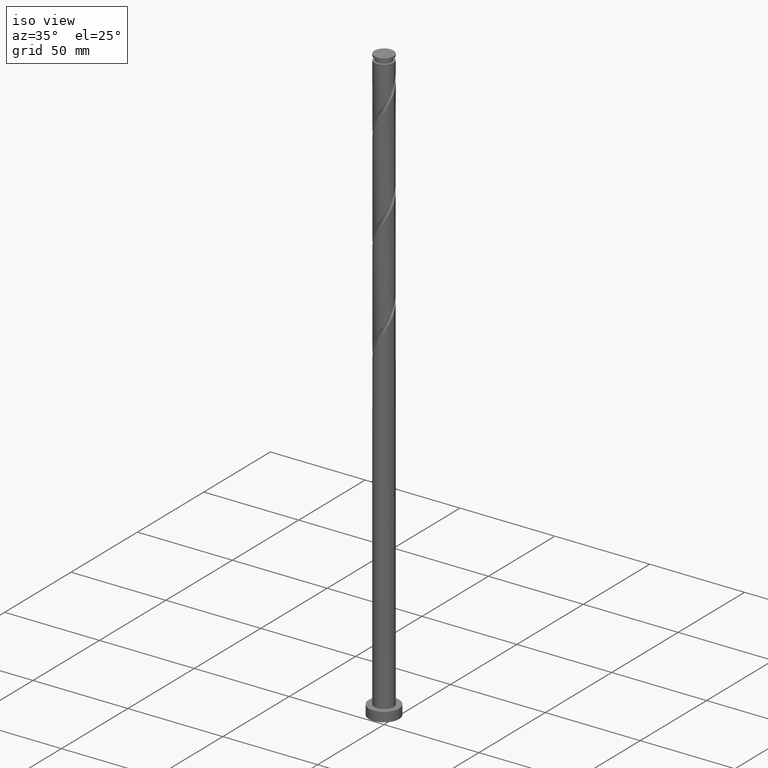
[diagram: clean part render]
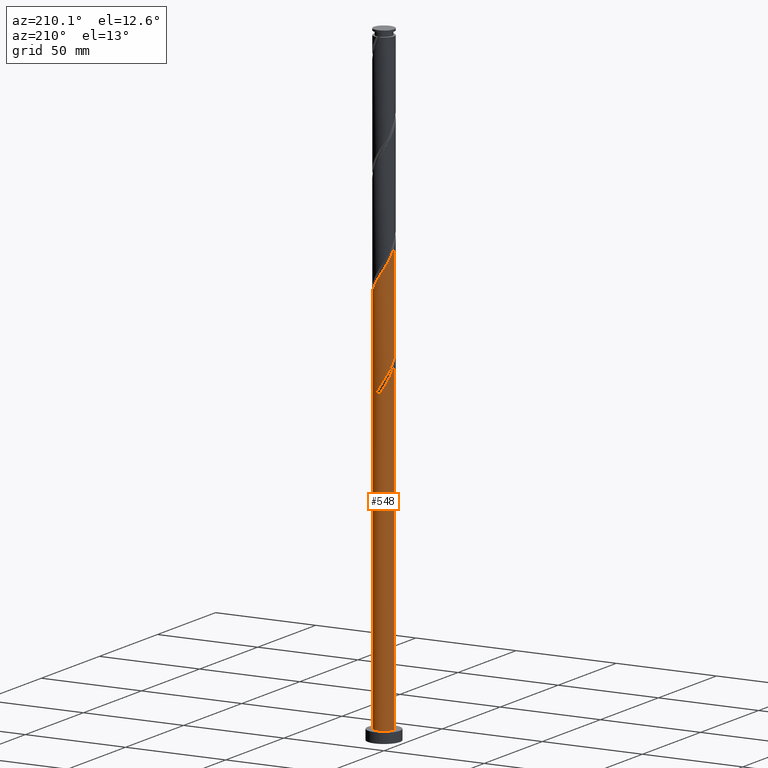
[diagram: tour spotlight — one face highlighted and labeled with its STEP entity id]
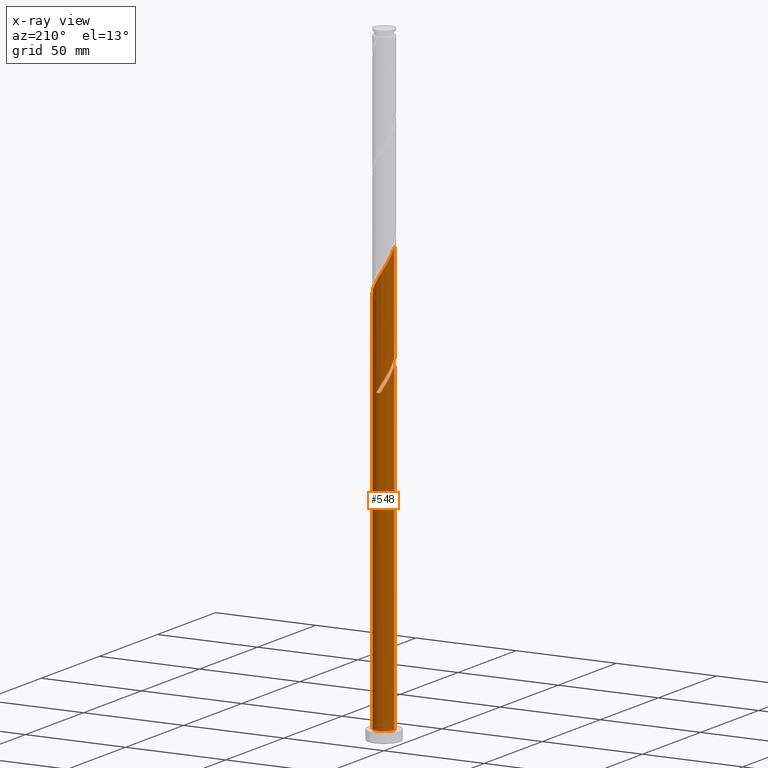
[diagram: x-ray of the same camera — body ghosted, this tour face saturated]
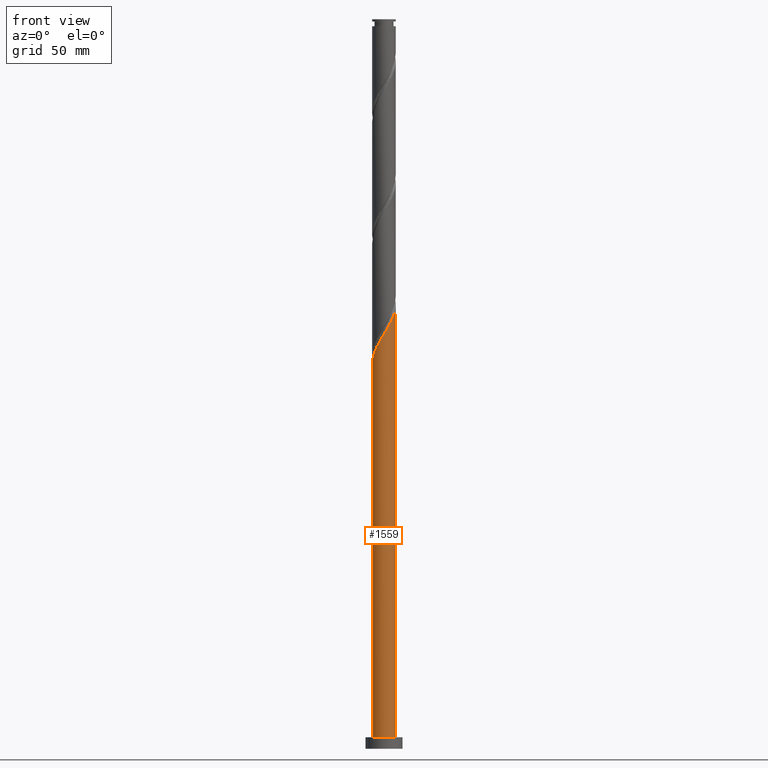
[diagram: tour spotlight — one face highlighted and labeled with its STEP entity id]
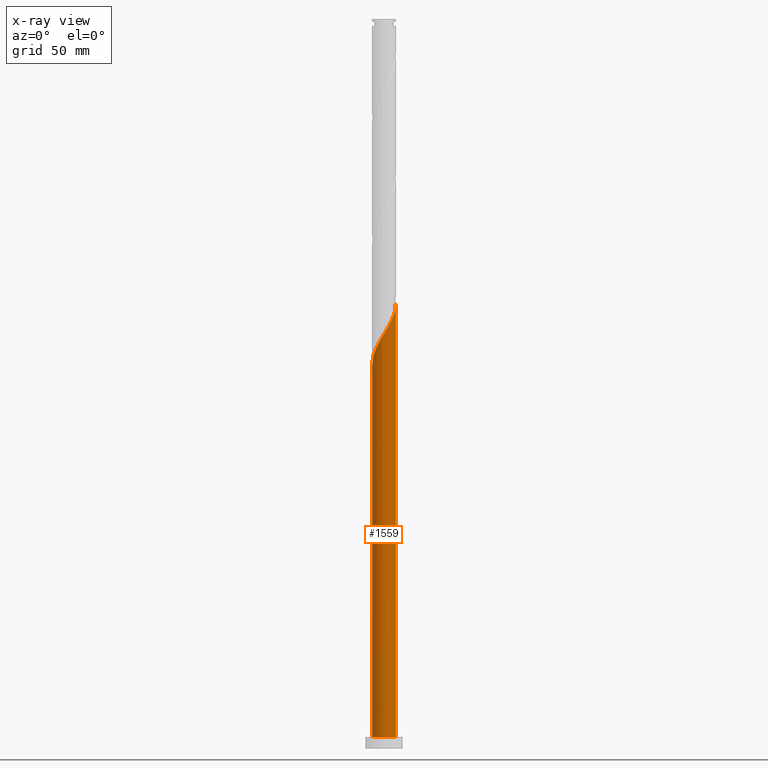
[diagram: x-ray of the same camera — body ghosted, this tour face saturated]
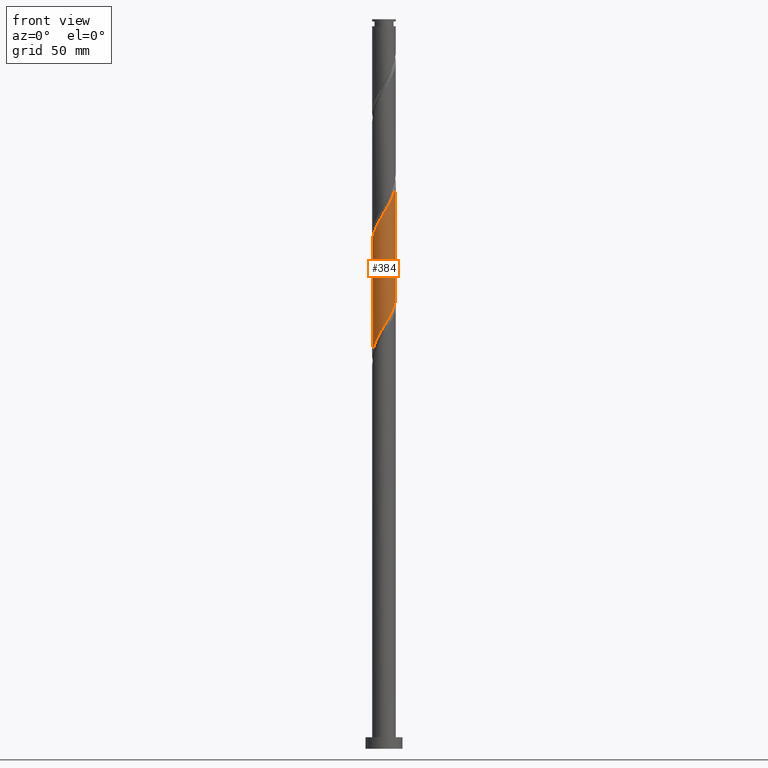
[diagram: tour spotlight — one face highlighted and labeled with its STEP entity id]
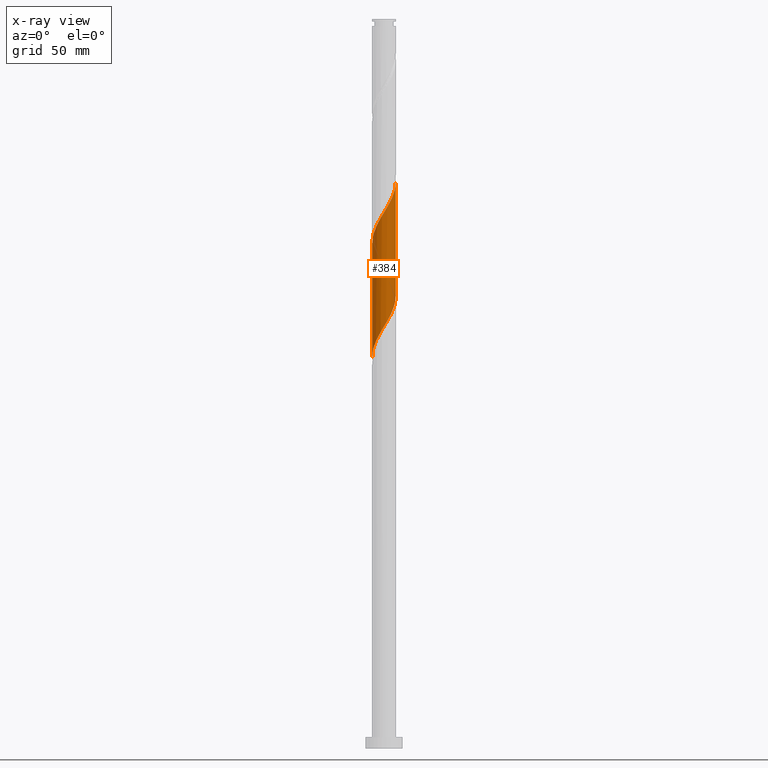
[diagram: x-ray of the same camera — body ghosted, this tour face saturated]
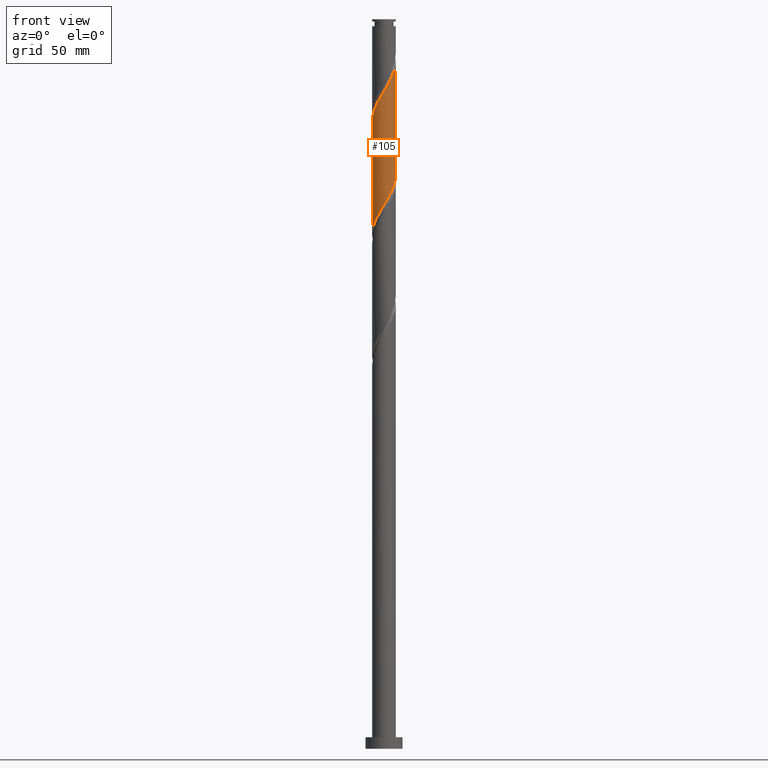
[diagram: tour spotlight — one face highlighted and labeled with its STEP entity id]
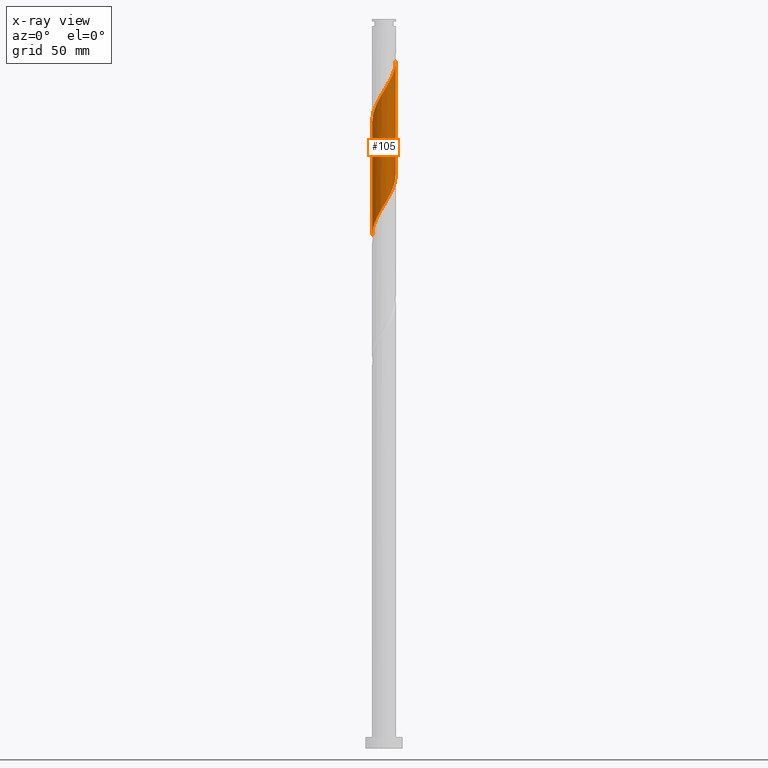
[diagram: x-ray of the same camera — body ghosted, this tour face saturated]
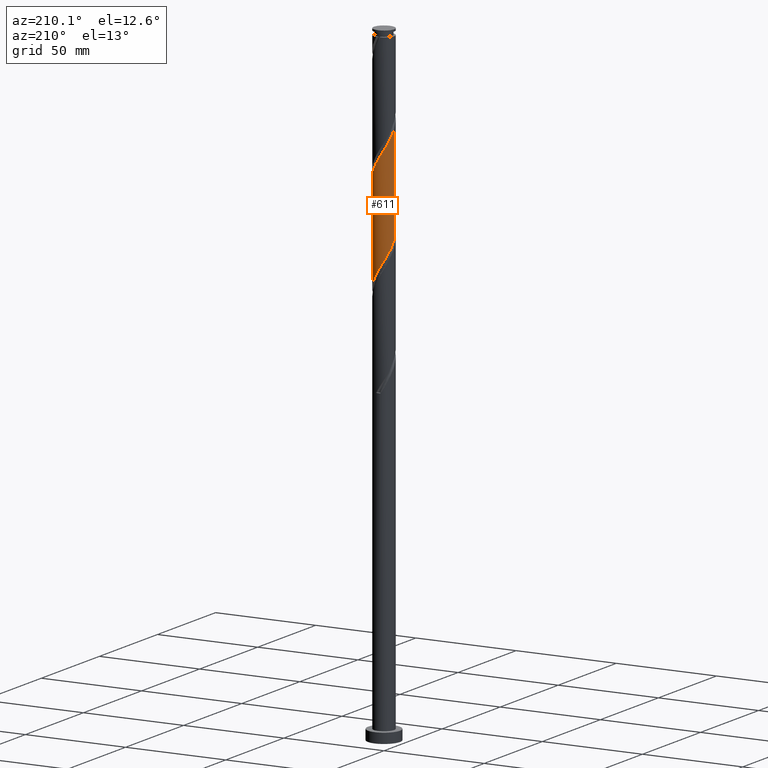
[diagram: tour spotlight — one face highlighted and labeled with its STEP entity id]
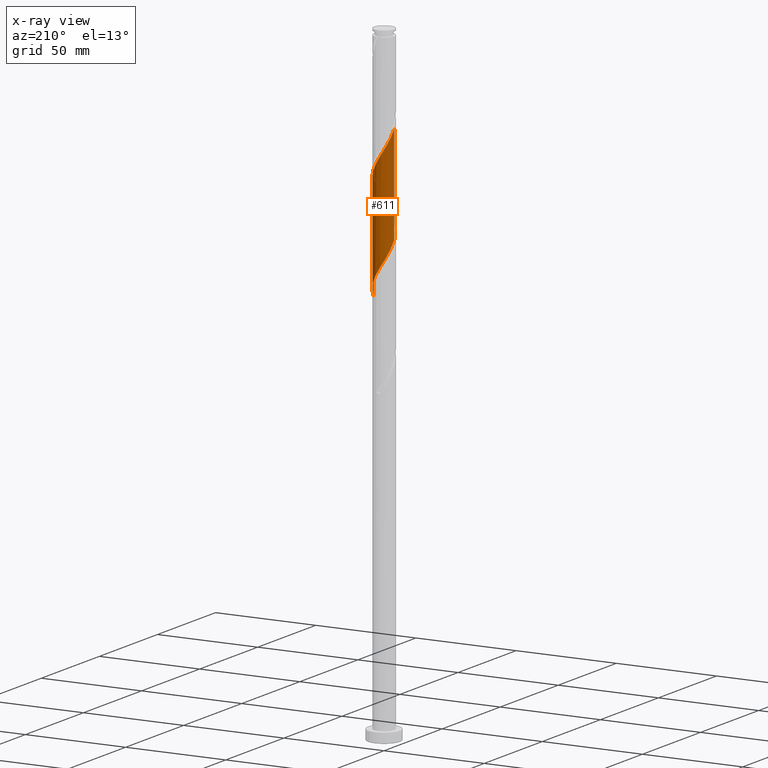
[diagram: x-ray of the same camera — body ghosted, this tour face saturated]
A machine part: a face-by-face anatomy tour. The part has 21 B-rep faces; the first image is the clean iso view, then the 5 largest visible faces are spotlighted one at a time (largest first), each with its STEP entity span.

Face 1 — auxiliary view, entity #548. An x-ray twin of the same camera follows (body ghosted, this face saturated) — the face is partly hidden behind the body. In plain terms, the highlighted cylindrical surface (edge-blend (fillet) strip) has radius 5.1 mm, axis along (-0, -0, -1).
Definition (entity closure, byte-faithful):
#72 = CARTESIAN_POINT ( 'NONE',  ( -3.540688967227730632, 3.715336265440162489, 159.1387158539477582 ) ) ;
#102 = CARTESIAN_POINT ( 'NONE',  ( -3.715336265440155383, 3.540688967227725303, 162.8887158539478719 ) ) ;
#121 = CARTESIAN_POINT ( 'NONE',  ( -0.1227177827140461114, 5.098523349540114324, 156.3262158539477866 ) ) ;
#131 = CARTESIAN_POINT ( 'NONE',  ( -2.322731276640010556, 4.540365559789020899, 160.0762158539477866 ) ) ;
#143 = EDGE_CURVE ( 'NONE', #413, #1006, #599, .T. ) ;
#150 = DIRECTION ( 'NONE',  ( 0.000000000000000000, -0.000000000000000000, -1.000000000000000000 ) ) ;
#153 = CARTESIAN_POINT ( 'NONE',  ( -2.625176406757037562, 4.410062444155324002, 209.7637158539477582 ) ) ;
#225 = CARTESIAN_POINT ( 'NONE',  ( 1.014887185848756257, 4.998000000000000220, 154.4512158539478150 ) ) ;
#244 = CARTESIAN_POINT ( 'NONE',  ( 0.000000000000000000, 0.000000000000000000, 315.0000000000000000 ) ) ;
#265 = CARTESIAN_POINT ( 'NONE',  ( -1.014887185848754259, 4.998000000000008214, 206.9512158539477298 ) ) ;
#280 = CARTESIAN_POINT ( 'NONE',  ( 5.099999999999999645, 6.245698675651500839E-16, 315.0000000000000000 ) ) ;
#295 = CIRCLE ( 'NONE', #727, 5.099999999999999645 ) ;
#309 = DIRECTION ( 'NONE',  ( -1.000000000000000000, 0.000000000000000000, 0.000000000000000000 ) ) ;
#318 = CARTESIAN_POINT ( 'NONE',  ( 5.099999999999999645, 6.245698675651500839E-16, 5.000000000000000000 ) ) ;
#400 = DIRECTION ( 'NONE',  ( -0.000000000000000000, -0.000000000000000000, -1.000000000000000000 ) ) ;
#402 =( BOUNDED_CURVE ( )  B_SPLINE_CURVE ( 2, ( #1114, #1393, #1248, #666, #1565, #72, #1238, #1084, #1539, #804, #1683, #1423, #1558, #1854, #512 ),
 .UNSPECIFIED., .F., .T. ) 
 B_SPLINE_CURVE_WITH_KNOTS ( ( 3, 2, 2, 2, 2, 2, 2, 3 ),
 ( 0.000000000000000000, 0.008928571428571396851, 0.01785714285714290472, 0.02678571428571430157, 0.03571428571428569843, 0.04464285714285709528, 0.05357142857142860315, 0.05453034012992170887 ),
 .UNSPECIFIED. ) 
 CURVE ( )  GEOMETRIC_REPRESENTATION_ITEM ( )  RATIONAL_B_SPLINE_CURVE ( ( 0.9090909090909364831, 0.9033747362666113556, 0.9090909090909364831, 0.9033747362666113556, 0.9090909090909364831, 0.9033747362666113556, 0.9090909090909364831, 0.9033747362666113556, 0.9090909090909364831, 0.9033747362666113556, 0.9090909090909364831, 0.9033747362666113556, 0.9090909090909364831, 0.9084770030214784908, 0.9079949616362069653 ) ) 
 REPRESENTATION_ITEM ( '' )  );
#413 = VERTEX_POINT ( 'NONE', #471 ) ;
#414 = CARTESIAN_POINT ( 'NONE',  ( -5.100000000000008527, -1.007489712703012152E-15, 218.4016987760417123 ) ) ;
#432 = CARTESIAN_POINT ( 'NONE',  ( -0.6971833976560920521, 5.084696376183699407, 157.2637158539477866 ) ) ;
#437 = VERTEX_POINT ( 'NONE', #318 ) ;
#442 = CARTESIAN_POINT ( 'NONE',  ( -4.883649677103470310, 1.578026539469510325, 166.6387158539478150 ) ) ;
#444 = CARTESIAN_POINT ( 'NONE',  ( -3.082932686992383431, 4.062699354797741691, 210.7012158539477298 ) ) ;
#452 = CARTESIAN_POINT ( 'NONE',  ( 1.014887185848756257, 4.998000000000000220, 154.4512158539478150 ) ) ;
#454 = CARTESIAN_POINT ( 'NONE',  ( -2.101601473113274388, 4.646856060629398932, 208.8262158539477014 ) ) ;
#471 = CARTESIAN_POINT ( 'NONE',  ( -1.014887185848754481, 4.998000000000008214, 154.4512158539478150 ) ) ;
#512 = CARTESIAN_POINT ( 'NONE',  ( -5.100000000000007638, 1.320930956655060092E-14, 165.9016987760416555 ) ) ;
#538 =( BOUNDED_CURVE ( )  B_SPLINE_CURVE ( 2, ( #1165, #1473, #1155, #442, #1024, #597, #558, #102, #1296, #879, #131, #725, #1327, #432, #121, #1750, #452 ),
 .UNSPECIFIED., .F., .T. ) 
 B_SPLINE_CURVE_WITH_KNOTS ( ( 3, 2, 2, 2, 2, 2, 2, 2, 3 ),
 ( 0.9295303401299221946, 0.9375000000000000000, 0.9464285714285713969, 0.9553571428571429047, 0.9642857142857143016, 0.9732142857142856984, 0.9821428571428570953, 0.9910714285714286031, 1.000000000000000000 ),
 .UNSPECIFIED. ) 
 CURVE ( )  GEOMETRIC_REPRESENTATION_ITEM ( )  RATIONAL_B_SPLINE_CURVE ( ( 0.9079949616361989717, 0.9039886423360622425, 0.9090909090909288226, 0.9033747362666038061, 0.9090909090909288226, 0.9033747362666038061, 0.9090909090909288226, 0.9033747362666038061, 0.9090909090909288226, 0.9033747362666038061, 0.9090909090909288226, 0.9033747362666038061, 0.9090909090909288226, 0.9033747362666038061, 0.9090909090909288226, 0.9033747362666038061, 0.9090909090909288226 ) ) 
 REPRESENTATION_ITEM ( '' )  );
#548 = ADVANCED_FACE ( 'NONE', ( #1504 ), #617, .T. ) ;
#557 = LINE ( 'NONE', #979, #941 ) ;
#558 = CARTESIAN_POINT ( 'NONE',  ( -4.062699354797735474, 3.082932686992380766, 163.8262158539478150 ) ) ;
#560 = CARTESIAN_POINT ( 'NONE',  ( 4.883649677103476527, 1.578026539469510547, 194.7637158539477866 ) ) ;
#572 = CARTESIAN_POINT ( 'NONE',  ( 4.998000000000008214, 1.014887185848754703, 193.8262158539478150 ) ) ;
#591 = CARTESIAN_POINT ( 'NONE',  ( -5.100000000000008527, -1.007489712703012152E-15, 218.4016987760417123 ) ) ;
#597 = CARTESIAN_POINT ( 'NONE',  ( -4.410062444155316008, 2.625176406757034897, 164.7637158539478435 ) ) ;
#599 = CIRCLE ( 'NONE', #1278, 5.099999999999999645 ) ;
#616 = CARTESIAN_POINT ( 'NONE',  ( 0.000000000000000000, 0.000000000000000000, 154.4512158539478150 ) ) ;
#617 = CYLINDRICAL_SURFACE ( 'NONE', #640, 5.099999999999999645 ) ;
#640 = AXIS2_PLACEMENT_3D ( 'NONE', #244, #1096, #1714 ) ;
#666 = CARTESIAN_POINT ( 'NONE',  ( -2.625176406757037562, 4.410062444155324002, 157.2637158539477866 ) ) ;
#670 = EDGE_CURVE ( 'NONE', #413, #685, #402, .T. ) ;
#671 = CARTESIAN_POINT ( 'NONE',  ( 4.646856060629399821, 2.101601473113273943, 195.7012158539478150 ) ) ;
#685 = VERTEX_POINT ( 'NONE', #1108 ) ;
#716 = CARTESIAN_POINT ( 'NONE',  ( -1.578026539469511214, 4.883649677103476527, 207.8887158539477582 ) ) ;
#725 = CARTESIAN_POINT ( 'NONE',  ( -1.811154940797368607, 4.802074521325987888, 159.1387158539478719 ) ) ;
#727 = AXIS2_PLACEMENT_3D ( 'NONE', #1497, #1356, #747 ) ;
#747 = DIRECTION ( 'NONE',  ( 1.000000000000000000, 0.000000000000000000, 0.000000000000000000 ) ) ;
#756 = CARTESIAN_POINT ( 'NONE',  ( -5.098523349540122318, 0.1227177827140473881, 218.2012158539477582 ) ) ;
#804 = CARTESIAN_POINT ( 'NONE',  ( -4.802074521325994994, 1.811154940797372159, 162.8887158539477866 ) ) ;
#806 = EDGE_CURVE ( 'NONE', #685, #1279, #557, .T. ) ;
#872 = CARTESIAN_POINT ( 'NONE',  ( -5.100000000000008527, 0.06136777554859399603, 218.3013360878165940 ) ) ;
#879 = CARTESIAN_POINT ( 'NONE',  ( -2.834307612482653393, 4.278656598252051246, 161.0137158539478150 ) ) ;
#893 = CARTESIAN_POINT ( 'NONE',  ( -4.943385448754852085, 1.254169169226733160, 216.3262158539477582 ) ) ;
#894 = ORIENTED_EDGE ( 'NONE', *, *, #1240, .T. ) ;
#902 = CARTESIAN_POINT ( 'NONE',  ( -5.084696376183709177, 0.6971833976560948276, 217.2637158539477866 ) ) ;
#941 = VECTOR ( 'NONE', #400, 1000.000000000000000 ) ;
#959 = CARTESIAN_POINT ( 'NONE',  ( 2.834307612482659611, 4.278656598252057464, 200.3887158539477298 ) ) ;
#972 = VERTEX_POINT ( 'NONE', #1617 ) ;
#979 = CARTESIAN_POINT ( 'NONE',  ( -5.099999999999999645, 0.000000000000000000, 315.0000000000000000 ) ) ;
#991 = CARTESIAN_POINT ( 'NONE',  ( 0.1227177827140486510, 5.098523349540122318, 205.0762158539476729 ) ) ;
#1000 = LINE ( 'NONE', #280, #1419 ) ;
#1006 = VERTEX_POINT ( 'NONE', #225 ) ;
#1013 = DIRECTION ( 'NONE',  ( -0.000000000000000000, -0.000000000000000000, -1.000000000000000000 ) ) ;
#1015 = CARTESIAN_POINT ( 'NONE',  ( -5.099999999999999645, 0.000000000000000000, 5.000000000000000000 ) ) ;
#1017 = ORIENTED_EDGE ( 'NONE', *, *, #1121, .F. ) ;
#1019 = ORIENTED_EDGE ( 'NONE', *, *, #143, .T. ) ;
#1024 = CARTESIAN_POINT ( 'NONE',  ( -4.646856060629392715, 2.101601473113271723, 165.7012158539478435 ) ) ;
#1036 = CARTESIAN_POINT ( 'NONE',  ( -4.802074521325994994, 1.811154940797372159, 215.3887158539478150 ) ) ;
#1084 = CARTESIAN_POINT ( 'NONE',  ( -4.278656598252059240, 2.834307612482657834, 161.0137158539478150 ) ) ;
#1096 = DIRECTION ( 'NONE',  ( -0.000000000000000000, -0.000000000000000000, -1.000000000000000000 ) ) ;
#1097 = VERTEX_POINT ( 'NONE', #1310 ) ;
#1108 = CARTESIAN_POINT ( 'NONE',  ( -5.100000000000007638, 1.320930956655060092E-14, 165.9016987760416555 ) ) ;
#1109 = CARTESIAN_POINT ( 'NONE',  ( 3.274821938961411050, 3.909672782739894270, 199.4512158539477582 ) ) ;
#1114 = CARTESIAN_POINT ( 'NONE',  ( -1.014887185848754481, 4.998000000000008214, 154.4512158539478150 ) ) ;
#1115 = VERTEX_POINT ( 'NONE', #414 ) ;
#1121 = EDGE_CURVE ( 'NONE', #1097, #1115, #1818, .T. ) ;
#1145 = ORIENTED_EDGE ( 'NONE', *, *, #670, .F. ) ;
#1146 = CARTESIAN_POINT ( 'NONE',  ( 1.811154940797373492, 4.802074521325994994, 202.2637158539477582 ) ) ;
#1155 = CARTESIAN_POINT ( 'NONE',  ( -4.998000000000000220, 1.014887185848755147, 167.5762158539478435 ) ) ;
#1165 = CARTESIAN_POINT ( 'NONE',  ( -5.100000000000000533, 2.358272216401145113E-15, 169.2507329318538609 ) ) ;
#1206 = CARTESIAN_POINT ( 'NONE',  ( -4.278656598252059240, 2.834307612482657834, 213.5137158539477298 ) ) ;
#1226 = ORIENTED_EDGE ( 'NONE', *, *, #806, .F. ) ;
#1238 = CARTESIAN_POINT ( 'NONE',  ( -3.909672782739894270, 3.274821938961410606, 160.0762158539478150 ) ) ;
#1240 = EDGE_CURVE ( 'NONE', #437, #1279, #295, .T. ) ;
#1248 = CARTESIAN_POINT ( 'NONE',  ( -2.101601473113274388, 4.646856060629398932, 156.3262158539478150 ) ) ;
#1263 = CARTESIAN_POINT ( 'NONE',  ( 3.715336265440162489, 3.540688967227728856, 198.5137158539477866 ) ) ;
#1278 = AXIS2_PLACEMENT_3D ( 'NONE', #616, #150, #309 ) ;
#1279 = VERTEX_POINT ( 'NONE', #1015 ) ;
#1289 = VECTOR ( 'NONE', #1013, 1000.000000000000000 ) ;
#1296 = CARTESIAN_POINT ( 'NONE',  ( -3.274821938961404388, 3.909672782739889385, 161.9512158539478719 ) ) ;
#1308 = LINE ( 'NONE', #1908, #1289 ) ;
#1310 = CARTESIAN_POINT ( 'NONE',  ( 5.100000000000008527, 3.582185645166265582E-16, 192.1516987760417123 ) ) ;
#1327 = CARTESIAN_POINT ( 'NONE',  ( -1.254169169226730274, 4.943385448754844091, 158.2012158539478150 ) ) ;
#1356 = DIRECTION ( 'NONE',  ( 0.000000000000000000, 0.000000000000000000, 1.000000000000000000 ) ) ;
#1382 = ORIENTED_EDGE ( 'NONE', *, *, #1619, .F. ) ;
#1388 = CARTESIAN_POINT ( 'NONE',  ( 4.062699354797742579, 3.082932686992382543, 197.5762158539477866 ) ) ;
#1393 = CARTESIAN_POINT ( 'NONE',  ( -1.578026539469511214, 4.883649677103476527, 155.3887158539477866 ) ) ;
#1407 = CARTESIAN_POINT ( 'NONE',  ( 4.410062444155324002, 2.625176406757037118, 196.6387158539477582 ) ) ;
#1417 = CARTESIAN_POINT ( 'NONE',  ( 1.254169169226734493, 4.943385448754852085, 203.2012158539477866 ) ) ;
#1419 = VECTOR ( 'NONE', #1918, 1000.000000000000000 ) ;
#1423 = CARTESIAN_POINT ( 'NONE',  ( -5.084696376183709177, 0.6971833976560948276, 164.7637158539477866 ) ) ;
#1444 = EDGE_LOOP ( 'NONE', ( #1017, #1752, #894, #1226, #1145, #1019, #1888, #1382 ) ) ;
#1465 = CARTESIAN_POINT ( 'NONE',  ( -3.540688967227730632, 3.715336265440162489, 211.6387158539477298 ) ) ;
#1473 = CARTESIAN_POINT ( 'NONE',  ( -5.099999999999996092, 0.5125692857822077286, 168.4124618528901749 ) ) ;
#1497 = CARTESIAN_POINT ( 'NONE',  ( 0.000000000000000000, 0.000000000000000000, 5.000000000000000000 ) ) ;
#1504 = FACE_OUTER_BOUND ( 'NONE', #1444, .T. ) ;
#1539 = CARTESIAN_POINT ( 'NONE',  ( -4.540365559789026229, 2.322731276640015885, 161.9512158539478435 ) ) ;
#1552 = CARTESIAN_POINT ( 'NONE',  ( 5.100000000000008527, 0.5125692857822030657, 192.9899698550052847 ) ) ;
#1558 = CARTESIAN_POINT ( 'NONE',  ( -5.098523349540122318, 0.1227177827140473881, 165.7012158539478150 ) ) ;
#1560 = CARTESIAN_POINT ( 'NONE',  ( 2.322731276640016329, 4.540365559789026229, 201.3262158539478150 ) ) ;
#1565 = CARTESIAN_POINT ( 'NONE',  ( -3.082932686992383431, 4.062699354797741691, 158.2012158539478150 ) ) ;
#1600 = CARTESIAN_POINT ( 'NONE',  ( -0.4517478322279986913, 5.112350322896537236, 206.0137158539477582 ) ) ;
#1608 = CARTESIAN_POINT ( 'NONE',  ( 5.100000000000008527, 3.582185645166265582E-16, 192.1516987760417123 ) ) ;
#1617 = CARTESIAN_POINT ( 'NONE',  ( -5.100000000000000533, 2.358272216401145113E-15, 169.2507329318538609 ) ) ;
#1619 = EDGE_CURVE ( 'NONE', #1115, #972, #1308, .T. ) ;
#1648 = EDGE_CURVE ( 'NONE', #972, #1006, #538, .T. ) ;
#1657 = CARTESIAN_POINT ( 'NONE',  ( -4.540365559789026229, 2.322731276640015885, 214.4512158539477866 ) ) ;
#1683 = CARTESIAN_POINT ( 'NONE',  ( -4.943385448754852085, 1.254169169226733160, 163.8262158539477298 ) ) ;
#1714 = DIRECTION ( 'NONE',  ( -1.000000000000000000, 0.000000000000000000, 0.000000000000000000 ) ) ;
#1743 = CARTESIAN_POINT ( 'NONE',  ( 0.6971833976560954937, 5.084696376183707400, 204.1387158539477582 ) ) ;
#1750 = CARTESIAN_POINT ( 'NONE',  ( 0.4517478322280000791, 5.112350322896528354, 155.3887158539478719 ) ) ;
#1752 = ORIENTED_EDGE ( 'NONE', *, *, #1787, .T. ) ;
#1787 = EDGE_CURVE ( 'NONE', #1097, #437, #1000, .T. ) ;
#1818 =( BOUNDED_CURVE ( )  B_SPLINE_CURVE ( 2, ( #1608, #1552, #572, #560, #671, #1407, #1388, #1263, #1109, #959, #1560, #1146, #1417, #1743, #991, #1600, #265, #716, #454, #153, #444, #1465, #1910, #1206, #1657, #1036, #893, #902, #756, #872, #591 ),
 .UNSPECIFIED., .F., .T. ) 
 B_SPLINE_CURVE_WITH_KNOTS ( ( 3, 2, 2, 2, 2, 2, 2, 2, 2, 2, 2, 2, 2, 2, 2, 3 ),
 ( 0.1795303401299221391, 0.1875000000000000000, 0.1964285714285713969, 0.2053571428571429047, 0.2142857142857143016, 0.2232142857142856984, 0.2321428571428570953, 0.2410714285714286031, 0.2500000000000000000, 0.2589285714285713969, 0.2678571428571429047, 0.2767857142857143016, 0.2857142857142856984, 0.2946428571428570953, 0.3035714285714286031, 0.3045303401299220281 ),
 .UNSPECIFIED. ) 
 CURVE ( )  GEOMETRIC_REPRESENTATION_ITEM ( )  RATIONAL_B_SPLINE_CURVE ( ( 0.9079949616362064102, 0.9039886423360696810, 0.9090909090909364831, 0.9033747362666113556, 0.9090909090909364831, 0.9033747362666113556, 0.9090909090909364831, 0.9033747362666113556, 0.9090909090909364831, 0.9033747362666113556, 0.9090909090909364831, 0.9033747362666113556, 0.9090909090909364831, 0.9033747362666113556, 0.9090909090909364831, 0.9033747362666113556, 0.9090909090909364831, 0.9033747362666113556, 0.9090909090909364831, 0.9033747362666113556, 0.9090909090909364831, 0.9033747362666113556, 0.9090909090909364831, 0.9033747362666113556, 0.9090909090909364831, 0.9033747362666113556, 0.9090909090909364831, 0.9033747362666113556, 0.9090909090909364831, 0.9084770030214782688, 0.9079949616362066322 ) ) 
 REPRESENTATION_ITEM ( '' )  );
#1854 = CARTESIAN_POINT ( 'NONE',  ( -5.100000000000008527, 0.06136777554861443801, 165.8013360878166509 ) ) ;
#1888 = ORIENTED_EDGE ( 'NONE', *, *, #1648, .F. ) ;
#1908 = CARTESIAN_POINT ( 'NONE',  ( -5.099999999999999645, 0.000000000000000000, 315.0000000000000000 ) ) ;
#1910 = CARTESIAN_POINT ( 'NONE',  ( -3.909672782739894270, 3.274821938961410606, 212.5762158539477582 ) ) ;
#1918 = DIRECTION ( 'NONE',  ( -0.000000000000000000, -0.000000000000000000, -1.000000000000000000 ) ) ;

Face 2 — front view, entity #1559. An x-ray twin of the same camera follows (body ghosted, this face saturated) — the face is partly hidden behind the body. In plain terms, the highlighted cylindrical surface (edge-blend (fillet) strip) has radius 5.1 mm, axis along (-0, -0, -1).
Definition (entity closure, byte-faithful):
#1 = CARTESIAN_POINT ( 'NONE',  ( 4.540365559789026229, -2.322731276640016329, 188.2012158539477866 ) ) ;
#5 = EDGE_LOOP ( 'NONE', ( #1132, #1867, #1028, #1577 ) ) ;
#7 = CIRCLE ( 'NONE', #568, 5.099999999999999645 ) ;
#27 = DIRECTION ( 'NONE',  ( -1.000000000000000000, 0.000000000000000000, 0.000000000000000000 ) ) ;
#57 = CARTESIAN_POINT ( 'NONE',  ( 4.943385448754852085, -1.254169169226734049, 190.0762158539477298 ) ) ;
#66 = CARTESIAN_POINT ( 'NONE',  ( 5.100000000000008527, 3.582185645166265582E-16, 192.1516987760417123 ) ) ;
#103 = CARTESIAN_POINT ( 'NONE',  ( -3.274821938961411050, -3.909672782739894270, 173.2012158539477582 ) ) ;
#122 = CARTESIAN_POINT ( 'NONE',  ( -4.062699354797741691, -3.082932686992382987, 171.3262158539477298 ) ) ;
#132 = CARTESIAN_POINT ( 'NONE',  ( 3.082932686992382987, -4.062699354797741691, 184.4512158539477014 ) ) ;
#142 = CARTESIAN_POINT ( 'NONE',  ( 4.278656598252059240, -2.834307612482659167, 187.2637158539477866 ) ) ;
#165 = CARTESIAN_POINT ( 'NONE',  ( 0.000000000000000000, 0.000000000000000000, 315.0000000000000000 ) ) ;
#237 = EDGE_CURVE ( 'NONE', #1279, #437, #7, .T. ) ;
#253 = CARTESIAN_POINT ( 'NONE',  ( -5.100000000000012079, -0.5125692857821764203, 166.7399698550052847 ) ) ;
#263 = CARTESIAN_POINT ( 'NONE',  ( -1.811154940797372603, -4.802074521325994994, 176.0137158539478150 ) ) ;
#280 = CARTESIAN_POINT ( 'NONE',  ( 5.099999999999999645, 6.245698675651500839E-16, 315.0000000000000000 ) ) ;
#318 = CARTESIAN_POINT ( 'NONE',  ( 5.099999999999999645, 6.245698675651500839E-16, 5.000000000000000000 ) ) ;
#377 = CARTESIAN_POINT ( 'NONE',  ( 5.100000000000009415, -0.06136777554858753592, 192.0513360878166509 ) ) ;
#400 = DIRECTION ( 'NONE',  ( -0.000000000000000000, -0.000000000000000000, -1.000000000000000000 ) ) ;
#437 = VERTEX_POINT ( 'NONE', #318 ) ;
#461 = DIRECTION ( 'NONE',  ( 1.000000000000000000, 0.000000000000000000, 0.000000000000000000 ) ) ;
#506 = CARTESIAN_POINT ( 'NONE',  ( 5.098523349540122318, -0.1227177827140479988, 191.9512158539477866 ) ) ;
#557 = LINE ( 'NONE', #979, #941 ) ;
#568 = AXIS2_PLACEMENT_3D ( 'NONE', #1185, #606, #461 ) ;
#606 = DIRECTION ( 'NONE',  ( 0.000000000000000000, 0.000000000000000000, 1.000000000000000000 ) ) ;
#685 = VERTEX_POINT ( 'NONE', #1108 ) ;
#715 = CARTESIAN_POINT ( 'NONE',  ( -2.322731276640015885, -4.540365559789026229, 175.0762158539477866 ) ) ;
#726 = CARTESIAN_POINT ( 'NONE',  ( -0.1227177827140477906, -5.098523349540122318, 178.8262158539477582 ) ) ;
#806 = EDGE_CURVE ( 'NONE', #685, #1279, #557, .T. ) ;
#861 = CARTESIAN_POINT ( 'NONE',  ( -4.883649677103476527, -1.578026539469510992, 168.5137158539478150 ) ) ;
#905 = CYLINDRICAL_SURFACE ( 'NONE', #1196, 5.099999999999999645 ) ;
#941 = VECTOR ( 'NONE', #400, 1000.000000000000000 ) ;
#979 = CARTESIAN_POINT ( 'NONE',  ( -5.099999999999999645, 0.000000000000000000, 315.0000000000000000 ) ) ;
#1000 = LINE ( 'NONE', #280, #1419 ) ;
#1001 = CARTESIAN_POINT ( 'NONE',  ( 2.625176406757037118, -4.410062444155324002, 183.5137158539478150 ) ) ;
#1004 = EDGE_CURVE ( 'NONE', #685, #1097, #1066, .T. ) ;
#1014 = CARTESIAN_POINT ( 'NONE',  ( 3.540688967227730632, -3.715336265440162489, 185.3887158539477866 ) ) ;
#1015 = CARTESIAN_POINT ( 'NONE',  ( -5.099999999999999645, 0.000000000000000000, 5.000000000000000000 ) ) ;
#1028 = ORIENTED_EDGE ( 'NONE', *, *, #806, .T. ) ;
#1048 = DIRECTION ( 'NONE',  ( -0.000000000000000000, -0.000000000000000000, -1.000000000000000000 ) ) ;
#1066 =( BOUNDED_CURVE ( )  B_SPLINE_CURVE ( 2, ( #1487, #253, #1474, #861, #1598, #1919, #122, #1131, #103, #1772, #715, #263, #1453, #1166, #726, #1900, #1156, #1762, #1909, #1001, #132, #1014, #1328, #142, #1, #1731, #57, #1835, #506, #377, #66 ),
 .UNSPECIFIED., .F., .T. ) 
 B_SPLINE_CURVE_WITH_KNOTS ( ( 3, 2, 2, 2, 2, 2, 2, 2, 2, 2, 2, 2, 2, 2, 2, 3 ),
 ( 0.05453034012992170887, 0.06250000000000000000, 0.07142857142857139685, 0.08035714285714290472, 0.08928571428571430157, 0.09821428571428569843, 0.1071428571428570953, 0.1160714285714286031, 0.1250000000000000000, 0.1339285714285713969, 0.1428571428571429047, 0.1517857142857143016, 0.1607142857142856984, 0.1696428571428570953, 0.1785714285714286031, 0.1795303401299221391 ),
 .UNSPECIFIED. ) 
 CURVE ( )  GEOMETRIC_REPRESENTATION_ITEM ( )  RATIONAL_B_SPLINE_CURVE ( ( 0.9079949616362069653, 0.9039886423360694589, 0.9090909090909364831, 0.9033747362666113556, 0.9090909090909364831, 0.9033747362666113556, 0.9090909090909364831, 0.9033747362666113556, 0.9090909090909364831, 0.9033747362666113556, 0.9090909090909364831, 0.9033747362666113556, 0.9090909090909364831, 0.9033747362666113556, 0.9090909090909364831, 0.9033747362666113556, 0.9090909090909364831, 0.9033747362666113556, 0.9090909090909364831, 0.9033747362666113556, 0.9090909090909364831, 0.9033747362666113556, 0.9090909090909364831, 0.9033747362666113556, 0.9090909090909364831, 0.9033747362666113556, 0.9090909090909364831, 0.9033747362666113556, 0.9090909090909364831, 0.9084770030214781578, 0.9079949616362064102 ) ) 
 REPRESENTATION_ITEM ( '' )  );
#1097 = VERTEX_POINT ( 'NONE', #1310 ) ;
#1108 = CARTESIAN_POINT ( 'NONE',  ( -5.100000000000007638, 1.320930956655060092E-14, 165.9016987760416555 ) ) ;
#1131 = CARTESIAN_POINT ( 'NONE',  ( -3.715336265440162489, -3.540688967227730632, 172.2637158539478150 ) ) ;
#1132 = ORIENTED_EDGE ( 'NONE', *, *, #1787, .F. ) ;
#1156 = CARTESIAN_POINT ( 'NONE',  ( 1.014887185848755147, -4.998000000000008214, 180.7012158539477582 ) ) ;
#1166 = CARTESIAN_POINT ( 'NONE',  ( -0.6971833976560948276, -5.084696376183709177, 177.8887158539477866 ) ) ;
#1185 = CARTESIAN_POINT ( 'NONE',  ( 0.000000000000000000, 0.000000000000000000, 5.000000000000000000 ) ) ;
#1196 = AXIS2_PLACEMENT_3D ( 'NONE', #165, #1048, #27 ) ;
#1279 = VERTEX_POINT ( 'NONE', #1015 ) ;
#1310 = CARTESIAN_POINT ( 'NONE',  ( 5.100000000000008527, 3.582185645166265582E-16, 192.1516987760417123 ) ) ;
#1328 = CARTESIAN_POINT ( 'NONE',  ( 3.909672782739894270, -3.274821938961411050, 186.3262158539477866 ) ) ;
#1368 = FACE_OUTER_BOUND ( 'NONE', #5, .T. ) ;
#1419 = VECTOR ( 'NONE', #1918, 1000.000000000000000 ) ;
#1453 = CARTESIAN_POINT ( 'NONE',  ( -1.254169169226733604, -4.943385448754852085, 176.9512158539477582 ) ) ;
#1474 = CARTESIAN_POINT ( 'NONE',  ( -4.998000000000008214, -1.014887185848755591, 167.5762158539477298 ) ) ;
#1487 = CARTESIAN_POINT ( 'NONE',  ( -5.100000000000007638, 1.320930956655060092E-14, 165.9016987760416555 ) ) ;
#1559 = ADVANCED_FACE ( 'NONE', ( #1368 ), #905, .T. ) ;
#1577 = ORIENTED_EDGE ( 'NONE', *, *, #237, .T. ) ;
#1598 = CARTESIAN_POINT ( 'NONE',  ( -4.646856060629399821, -2.101601473113274388, 169.4512158539477298 ) ) ;
#1731 = CARTESIAN_POINT ( 'NONE',  ( 4.802074521325994994, -1.811154940797372603, 189.1387158539477582 ) ) ;
#1762 = CARTESIAN_POINT ( 'NONE',  ( 1.578026539469510547, -4.883649677103476527, 181.6387158539477866 ) ) ;
#1772 = CARTESIAN_POINT ( 'NONE',  ( -2.834307612482657834, -4.278656598252057464, 174.1387158539477866 ) ) ;
#1787 = EDGE_CURVE ( 'NONE', #1097, #437, #1000, .T. ) ;
#1835 = CARTESIAN_POINT ( 'NONE',  ( 5.084696376183707400, -0.6971833976560950497, 191.0137158539478435 ) ) ;
#1867 = ORIENTED_EDGE ( 'NONE', *, *, #1004, .F. ) ;
#1900 = CARTESIAN_POINT ( 'NONE',  ( 0.4517478322279992464, -5.112350322896537236, 179.7637158539478435 ) ) ;
#1909 = CARTESIAN_POINT ( 'NONE',  ( 2.101601473113273943, -4.646856060629399821, 182.5762158539477582 ) ) ;
#1918 = DIRECTION ( 'NONE',  ( -0.000000000000000000, -0.000000000000000000, -1.000000000000000000 ) ) ;
#1919 = CARTESIAN_POINT ( 'NONE',  ( -4.410062444155324002, -2.625176406757037562, 170.3887158539477298 ) ) ;

Face 3 — front view, entity #384. An x-ray twin of the same camera follows (body ghosted, this face saturated) — the face is partly hidden behind the body. In plain terms, the highlighted cylindrical surface (edge-blend (fillet) strip) has radius 5.1 mm, axis along (-0, -0, -1).
Definition (entity closure, byte-faithful):
#12 = CARTESIAN_POINT ( 'NONE',  ( -5.084696376183699407, -0.6971833976560917190, 170.3887158539478719 ) ) ;
#19 = VECTOR ( 'NONE', #231, 1000.000000000000000 ) ;
#23 = CARTESIAN_POINT ( 'NONE',  ( 2.834307612482652949, -4.278656598252052135, 187.2637158539477866 ) ) ;
#24 = CARTESIAN_POINT ( 'NONE',  ( 5.100000000000008527, 3.582185645166265582E-16, 244.6516987760416839 ) ) ;
#42 = CARTESIAN_POINT ( 'NONE',  ( -3.082932686992380766, -4.062699354797734586, 176.9512158539478150 ) ) ;
#53 = CARTESIAN_POINT ( 'NONE',  ( 4.802074521325994994, -1.811154940797372603, 241.6387158539478150 ) ) ;
#81 = CARTESIAN_POINT ( 'NONE',  ( -3.715336265440162489, -3.540688967227730632, 224.7637158539477866 ) ) ;
#111 = CARTESIAN_POINT ( 'NONE',  ( 5.098523349540122318, -0.1227177827140479988, 244.4512158539477298 ) ) ;
#140 = CARTESIAN_POINT ( 'NONE',  ( 4.998000000000000220, -1.014887185848756035, 193.8262158539478150 ) ) ;
#152 = CARTESIAN_POINT ( 'NONE',  ( -0.4517478322280007452, -5.112350322896528354, 181.6387158539477866 ) ) ;
#161 = CARTESIAN_POINT ( 'NONE',  ( 2.322731276640010112, -4.540365559789020899, 186.3262158539478435 ) ) ;
#187 = CARTESIAN_POINT ( 'NONE',  ( -5.100000000000000533, 2.358272216401145113E-15, 169.2507329318538609 ) ) ;
#221 = CARTESIAN_POINT ( 'NONE',  ( 5.099999999999999645, 6.245698675651500839E-16, 315.0000000000000000 ) ) ;
#231 = DIRECTION ( 'NONE',  ( -0.000000000000000000, -0.000000000000000000, -1.000000000000000000 ) ) ;
#287 = EDGE_CURVE ( 'NONE', #1424, #972, #552, .T. ) ;
#290 = CARTESIAN_POINT ( 'NONE',  ( 4.410062444155315120, -2.625176406757034897, 191.0137158539478435 ) ) ;
#294 = ORIENTED_EDGE ( 'NONE', *, *, #1619, .T. ) ;
#302 = DIRECTION ( 'NONE',  ( -0.000000000000000000, -0.000000000000000000, -1.000000000000000000 ) ) ;
#352 = CARTESIAN_POINT ( 'NONE',  ( -5.100000000000010303, -0.5125692857821967374, 219.2399698550053984 ) ) ;
#364 = CARTESIAN_POINT ( 'NONE',  ( -1.811154940797372603, -4.802074521325994994, 228.5137158539477582 ) ) ;
#374 = CARTESIAN_POINT ( 'NONE',  ( -0.6971833976560948276, -5.084696376183709177, 230.3887158539477866 ) ) ;
#382 = CARTESIAN_POINT ( 'NONE',  ( 3.909672782739894270, -3.274821938961411050, 238.8262158539478150 ) ) ;
#384 = ADVANCED_FACE ( 'NONE', ( #634 ), #1381, .T. ) ;
#390 = CARTESIAN_POINT ( 'NONE',  ( -4.646856060629399821, -2.101601473113274388, 221.9512158539477866 ) ) ;
#392 = AXIS2_PLACEMENT_3D ( 'NONE', #1195, #302, #763 ) ;
#414 = CARTESIAN_POINT ( 'NONE',  ( -5.100000000000008527, -1.007489712703012152E-15, 218.4016987760417123 ) ) ;
#441 = CARTESIAN_POINT ( 'NONE',  ( 5.100000000000000533, -3.000080477826772952E-15, 195.5007329318539462 ) ) ;
#451 = CARTESIAN_POINT ( 'NONE',  ( 3.274821938961404388, -3.909672782739889385, 188.2012158539478150 ) ) ;
#453 = CARTESIAN_POINT ( 'NONE',  ( -2.625176406757034897, -4.410062444155316008, 177.8887158539477866 ) ) ;
#501 = CARTESIAN_POINT ( 'NONE',  ( -1.254169169226733604, -4.943385448754852085, 229.4512158539477866 ) ) ;
#531 = CARTESIAN_POINT ( 'NONE',  ( 3.082932686992382987, -4.062699354797741691, 236.9512158539477866 ) ) ;
#552 =( BOUNDED_CURVE ( )  B_SPLINE_CURVE ( 2, ( #441, #1485, #140, #1023, #1627, #290, #735, #1335, #451, #23, #161, #1674, #1638, #918, #1052, #152, #1373, #909, #598, #453, #42, #783, #1034, #771, #1225, #1530, #1800, #12, #1822, #1075, #187 ),
 .UNSPECIFIED., .F., .T. ) 
 B_SPLINE_CURVE_WITH_KNOTS ( ( 3, 2, 2, 2, 2, 2, 2, 2, 2, 2, 2, 2, 2, 2, 2, 3 ),
 ( 0.8045303401299219725, 0.8125000000000000000, 0.8214285714285713969, 0.8303571428571429047, 0.8392857142857143016, 0.8482142857142856984, 0.8571428571428570953, 0.8660714285714286031, 0.8750000000000000000, 0.8839285714285713969, 0.8928571428571429047, 0.9017857142857143016, 0.9107142857142856984, 0.9196428571428570953, 0.9285714285714286031, 0.9295303401299221946 ),
 .UNSPECIFIED. ) 
 CURVE ( )  GEOMETRIC_REPRESENTATION_ITEM ( )  RATIONAL_B_SPLINE_CURVE ( ( 0.9079949616361989717, 0.9039886423360620205, 0.9090909090909288226, 0.9033747362666038061, 0.9090909090909288226, 0.9033747362666038061, 0.9090909090909288226, 0.9033747362666038061, 0.9090909090909288226, 0.9033747362666038061, 0.9090909090909288226, 0.9033747362666038061, 0.9090909090909288226, 0.9033747362666038061, 0.9090909090909288226, 0.9033747362666038061, 0.9090909090909288226, 0.9033747362666038061, 0.9090909090909288226, 0.9033747362666038061, 0.9090909090909288226, 0.9033747362666038061, 0.9090909090909288226, 0.9033747362666038061, 0.9090909090909288226, 0.9033747362666038061, 0.9090909090909288226, 0.9033747362666038061, 0.9090909090909288226, 0.9084770030214706082, 0.9079949616361989717 ) ) 
 REPRESENTATION_ITEM ( '' )  );
#598 = CARTESIAN_POINT ( 'NONE',  ( -2.101601473113272167, -4.646856060629392715, 178.8262158539478435 ) ) ;
#634 = FACE_OUTER_BOUND ( 'NONE', #1766, .T. ) ;
#646 = CARTESIAN_POINT ( 'NONE',  ( -4.998000000000008214, -1.014887185848755591, 220.0762158539477298 ) ) ;
#677 = CARTESIAN_POINT ( 'NONE',  ( 1.014887185848755147, -4.998000000000008214, 233.2012158539477582 ) ) ;
#683 = CARTESIAN_POINT ( 'NONE',  ( -3.274821938961411050, -3.909672782739894270, 225.7012158539477582 ) ) ;
#696 = CARTESIAN_POINT ( 'NONE',  ( 5.084696376183707400, -0.6971833976560950497, 243.5137158539477866 ) ) ;
#719 = EDGE_CURVE ( 'NONE', #1277, #1424, #1705, .T. ) ;
#735 = CARTESIAN_POINT ( 'NONE',  ( 4.062699354797734586, -3.082932686992380766, 190.0762158539477866 ) ) ;
#745 = EDGE_CURVE ( 'NONE', #1115, #1277, #1671, .T. ) ;
#763 = DIRECTION ( 'NONE',  ( -1.000000000000000000, 0.000000000000000000, 0.000000000000000000 ) ) ;
#771 = CARTESIAN_POINT ( 'NONE',  ( -4.278656598252051246, -2.834307612482652949, 174.1387158539478150 ) ) ;
#783 = CARTESIAN_POINT ( 'NONE',  ( -3.540688967227725303, -3.715336265440155383, 176.0137158539478150 ) ) ;
#815 = CARTESIAN_POINT ( 'NONE',  ( -4.062699354797741691, -3.082932686992382987, 223.8262158539477298 ) ) ;
#818 = ORIENTED_EDGE ( 'NONE', *, *, #287, .F. ) ;
#826 = CARTESIAN_POINT ( 'NONE',  ( -5.100000000000008527, -1.007489712703012152E-15, 218.4016987760417123 ) ) ;
#833 = CARTESIAN_POINT ( 'NONE',  ( -4.410062444155324002, -2.625176406757037562, 222.8887158539478150 ) ) ;
#909 = CARTESIAN_POINT ( 'NONE',  ( -1.578026539469510992, -4.883649677103470310, 179.7637158539478719 ) ) ;
#918 = CARTESIAN_POINT ( 'NONE',  ( 0.6971833976560911639, -5.084696376183699407, 183.5137158539478150 ) ) ;
#937 = CARTESIAN_POINT ( 'NONE',  ( -4.883649677103476527, -1.578026539469510992, 221.0137158539477582 ) ) ;
#958 = CARTESIAN_POINT ( 'NONE',  ( -0.1227177827140477906, -5.098523349540122318, 231.3262158539478150 ) ) ;
#964 = CARTESIAN_POINT ( 'NONE',  ( 4.278656598252059240, -2.834307612482659167, 239.7637158539477298 ) ) ;
#971 = CARTESIAN_POINT ( 'NONE',  ( 3.540688967227730632, -3.715336265440162489, 237.8887158539478150 ) ) ;
#972 = VERTEX_POINT ( 'NONE', #1617 ) ;
#988 = CARTESIAN_POINT ( 'NONE',  ( 5.100000000000008527, 3.582185645166265582E-16, 244.6516987760417123 ) ) ;
#1013 = DIRECTION ( 'NONE',  ( -0.000000000000000000, -0.000000000000000000, -1.000000000000000000 ) ) ;
#1023 = CARTESIAN_POINT ( 'NONE',  ( 4.883649677103470310, -1.578026539469511436, 192.8887158539477866 ) ) ;
#1034 = CARTESIAN_POINT ( 'NONE',  ( -3.909672782739889385, -3.274821938961404388, 175.0762158539478435 ) ) ;
#1052 = CARTESIAN_POINT ( 'NONE',  ( 0.1227177827140454591, -5.098523349540114324, 182.5762158539478150 ) ) ;
#1075 = CARTESIAN_POINT ( 'NONE',  ( -5.099999999999999645, -0.06136777554858188766, 169.3510956200788939 ) ) ;
#1115 = VERTEX_POINT ( 'NONE', #414 ) ;
#1133 = ORIENTED_EDGE ( 'NONE', *, *, #745, .F. ) ;
#1195 = CARTESIAN_POINT ( 'NONE',  ( 0.000000000000000000, 0.000000000000000000, 315.0000000000000000 ) ) ;
#1225 = CARTESIAN_POINT ( 'NONE',  ( -4.540365559789020899, -2.322731276640010556, 173.2012158539478435 ) ) ;
#1268 = CARTESIAN_POINT ( 'NONE',  ( 1.578026539469510547, -4.883649677103476527, 234.1387158539477866 ) ) ;
#1275 = CARTESIAN_POINT ( 'NONE',  ( 2.101601473113273943, -4.646856060629399821, 235.0762158539478150 ) ) ;
#1277 = VERTEX_POINT ( 'NONE', #24 ) ;
#1280 = ORIENTED_EDGE ( 'NONE', *, *, #719, .F. ) ;
#1289 = VECTOR ( 'NONE', #1013, 1000.000000000000000 ) ;
#1294 = CARTESIAN_POINT ( 'NONE',  ( 5.100000000000008527, -0.06136777554860531336, 244.5513360878166225 ) ) ;
#1308 = LINE ( 'NONE', #1908, #1289 ) ;
#1335 = CARTESIAN_POINT ( 'NONE',  ( 3.715336265440155383, -3.540688967227725303, 189.1387158539478719 ) ) ;
#1373 = CARTESIAN_POINT ( 'NONE',  ( -1.014887185848755813, -4.998000000000000220, 180.7012158539477866 ) ) ;
#1381 = CYLINDRICAL_SURFACE ( 'NONE', #392, 5.099999999999999645 ) ;
#1413 = CARTESIAN_POINT ( 'NONE',  ( 0.4517478322279992464, -5.112350322896537236, 232.2637158539477866 ) ) ;
#1424 = VERTEX_POINT ( 'NONE', #1824 ) ;
#1485 = CARTESIAN_POINT ( 'NONE',  ( 5.099999999999999645, -0.5125692857821944060, 194.6624618528902317 ) ) ;
#1530 = CARTESIAN_POINT ( 'NONE',  ( -4.802074521325987888, -1.811154940797367940, 172.2637158539477866 ) ) ;
#1576 = CARTESIAN_POINT ( 'NONE',  ( 4.540365559789026229, -2.322731276640016329, 240.7012158539477866 ) ) ;
#1617 = CARTESIAN_POINT ( 'NONE',  ( -5.100000000000000533, 2.358272216401145113E-15, 169.2507329318538609 ) ) ;
#1619 = EDGE_CURVE ( 'NONE', #1115, #972, #1308, .T. ) ;
#1627 = CARTESIAN_POINT ( 'NONE',  ( 4.646856060629392715, -2.101601473113273055, 191.9512158539478435 ) ) ;
#1638 = CARTESIAN_POINT ( 'NONE',  ( 1.254169169226730052, -4.943385448754844091, 184.4512158539478435 ) ) ;
#1671 =( BOUNDED_CURVE ( )  B_SPLINE_CURVE ( 2, ( #826, #352, #646, #937, #390, #833, #815, #81, #683, #1722, #1841, #364, #501, #374, #958, #1413, #677, #1268, #1275, #1865, #531, #971, #382, #964, #1576, #53, #1739, #696, #111, #1294, #988 ),
 .UNSPECIFIED., .F., .T. ) 
 B_SPLINE_CURVE_WITH_KNOTS ( ( 3, 2, 2, 2, 2, 2, 2, 2, 2, 2, 2, 2, 2, 2, 2, 3 ),
 ( 0.3045303401299220281, 0.3125000000000000000, 0.3214285714285713969, 0.3303571428571429047, 0.3392857142857143016, 0.3482142857142856984, 0.3571428571428570953, 0.3660714285714286031, 0.3750000000000000000, 0.3839285714285713969, 0.3928571428571429047, 0.4017857142857143016, 0.4107142857142856984, 0.4196428571428570953, 0.4285714285714286031, 0.4295303401299218615 ),
 .UNSPECIFIED. ) 
 CURVE ( )  GEOMETRIC_REPRESENTATION_ITEM ( )  RATIONAL_B_SPLINE_CURVE ( ( 0.9079949616362066322, 0.9039886423360695700, 0.9090909090909364831, 0.9033747362666113556, 0.9090909090909364831, 0.9033747362666113556, 0.9090909090909364831, 0.9033747362666113556, 0.9090909090909364831, 0.9033747362666113556, 0.9090909090909364831, 0.9033747362666113556, 0.9090909090909364831, 0.9033747362666113556, 0.9090909090909364831, 0.9033747362666113556, 0.9090909090909364831, 0.9033747362666113556, 0.9090909090909364831, 0.9033747362666113556, 0.9090909090909364831, 0.9033747362666113556, 0.9090909090909364831, 0.9033747362666113556, 0.9090909090909364831, 0.9033747362666113556, 0.9090909090909364831, 0.9033747362666113556, 0.9090909090909364831, 0.9084770030214783798, 0.9079949616362067433 ) ) 
 REPRESENTATION_ITEM ( '' )  );
#1674 = CARTESIAN_POINT ( 'NONE',  ( 1.811154940797367940, -4.802074521325987888, 185.3887158539477866 ) ) ;
#1705 = LINE ( 'NONE', #221, #19 ) ;
#1722 = CARTESIAN_POINT ( 'NONE',  ( -2.834307612482657834, -4.278656598252057464, 226.6387158539478150 ) ) ;
#1739 = CARTESIAN_POINT ( 'NONE',  ( 4.943385448754852085, -1.254169169226734049, 242.5762158539477298 ) ) ;
#1766 = EDGE_LOOP ( 'NONE', ( #1280, #1133, #294, #818 ) ) ;
#1800 = CARTESIAN_POINT ( 'NONE',  ( -4.943385448754844091, -1.254169169226730052, 171.3262158539478150 ) ) ;
#1822 = CARTESIAN_POINT ( 'NONE',  ( -5.098523349540114324, -0.1227177827140458616, 169.4512158539478435 ) ) ;
#1824 = CARTESIAN_POINT ( 'NONE',  ( 5.100000000000000533, -3.000080477826772952E-15, 195.5007329318539178 ) ) ;
#1841 = CARTESIAN_POINT ( 'NONE',  ( -2.322731276640015885, -4.540365559789026229, 227.5762158539477866 ) ) ;
#1865 = CARTESIAN_POINT ( 'NONE',  ( 2.625176406757037118, -4.410062444155324002, 236.0137158539477866 ) ) ;
#1908 = CARTESIAN_POINT ( 'NONE',  ( -5.099999999999999645, 0.000000000000000000, 315.0000000000000000 ) ) ;

Face 4 — front view, entity #105. An x-ray twin of the same camera follows (body ghosted, this face saturated) — the face is partly hidden behind the body. In plain terms, the highlighted cylindrical surface (edge-blend (fillet) strip) has radius 5.1 mm, axis along (-0, -0, -1).
Definition (entity closure, byte-faithful):
#9 = CARTESIAN_POINT ( 'NONE',  ( 5.100000000000008527, -0.06136777554859108169, 297.0513360878165940 ) ) ;
#11 = CARTESIAN_POINT ( 'NONE',  ( -1.014887185848755813, -4.998000000000000220, 233.2012158539478435 ) ) ;
#17 = CARTESIAN_POINT ( 'NONE',  ( 5.100000000000009415, -4.104587718419679702E-16, 297.1516987760416555 ) ) ;
#21 = DIRECTION ( 'NONE',  ( -0.000000000000000000, -0.000000000000000000, -1.000000000000000000 ) ) ;
#30 = CARTESIAN_POINT ( 'NONE',  ( -2.101601473113272167, -4.646856060629392715, 231.3262158539478435 ) ) ;
#36 = CARTESIAN_POINT ( 'NONE',  ( -4.410062444155324002, -2.625176406757037562, 275.3887158539478150 ) ) ;
#105 = ADVANCED_FACE ( 'NONE', ( #1915 ), #876, .T. ) ;
#119 = CARTESIAN_POINT ( 'NONE',  ( 0.000000000000000000, 0.000000000000000000, 315.0000000000000000 ) ) ;
#130 = CARTESIAN_POINT ( 'NONE',  ( 1.811154940797367940, -4.802074521325987888, 237.8887158539478435 ) ) ;
#157 = CARTESIAN_POINT ( 'NONE',  ( -1.254169169226733604, -4.943385448754852085, 281.9512158539477582 ) ) ;
#159 = CARTESIAN_POINT ( 'NONE',  ( 5.100000000000009415, -4.104587718419679702E-16, 297.1516987760416555 ) ) ;
#168 = CARTESIAN_POINT ( 'NONE',  ( 5.099999999999999645, 6.245698675651500839E-16, 315.0000000000000000 ) ) ;
#172 = EDGE_CURVE ( 'NONE', #254, #1301, #588, .T. ) ;
#175 = CARTESIAN_POINT ( 'NONE',  ( -5.100000000000009415, -2.388123763444177712E-16, 270.9016987760417123 ) ) ;
#188 = VERTEX_POINT ( 'NONE', #869 ) ;
#199 = EDGE_CURVE ( 'NONE', #1301, #188, #881, .T. ) ;
#246 = ORIENTED_EDGE ( 'NONE', *, *, #172, .F. ) ;
#254 = VERTEX_POINT ( 'NONE', #159 ) ;
#279 = CARTESIAN_POINT ( 'NONE',  ( 5.100000000000000533, -3.000080477826772952E-15, 248.0007329318538893 ) ) ;
#282 = CARTESIAN_POINT ( 'NONE',  ( 5.100000000000000533, -3.000080477826772952E-15, 248.0007329318538893 ) ) ;
#301 = CARTESIAN_POINT ( 'NONE',  ( 2.834307612482652949, -4.278656598252052135, 239.7637158539478150 ) ) ;
#306 = CARTESIAN_POINT ( 'NONE',  ( 3.540688967227730632, -3.715336265440162489, 290.3887158539478150 ) ) ;
#317 = CARTESIAN_POINT ( 'NONE',  ( -5.099999999999999645, -0.06136777554858899308, 221.8510956200789508 ) ) ;
#335 = CARTESIAN_POINT ( 'NONE',  ( 4.802074521325994994, -1.811154940797372603, 294.1387158539477014 ) ) ;
#346 = CARTESIAN_POINT ( 'NONE',  ( 2.625176406757037118, -4.410062444155324002, 288.5137158539477582 ) ) ;
#391 = ORIENTED_EDGE ( 'NONE', *, *, #1479, .F. ) ;
#431 = CARTESIAN_POINT ( 'NONE',  ( 0.1227177827140454591, -5.098523349540114324, 235.0762158539478150 ) ) ;
#459 = CARTESIAN_POINT ( 'NONE',  ( 1.014887185848755147, -4.998000000000008214, 285.7012158539478150 ) ) ;
#469 = CARTESIAN_POINT ( 'NONE',  ( 4.646856060629392715, -2.101601473113273055, 244.4512158539478150 ) ) ;
#475 = CARTESIAN_POINT ( 'NONE',  ( 5.084696376183707400, -0.6971833976560950497, 296.0137158539478150 ) ) ;
#484 = CARTESIAN_POINT ( 'NONE',  ( -3.274821938961411050, -3.909672782739894270, 278.2012158539476445 ) ) ;
#496 = CARTESIAN_POINT ( 'NONE',  ( -0.6971833976560948276, -5.084696376183709177, 282.8887158539478150 ) ) ;
#561 = EDGE_LOOP ( 'NONE', ( #246, #391, #1570, #1873 ) ) ;
#588 = LINE ( 'NONE', #168, #1053 ) ;
#596 = CARTESIAN_POINT ( 'NONE',  ( -5.084696376183699407, -0.6971833976560917190, 222.8887158539477866 ) ) ;
#604 = CARTESIAN_POINT ( 'NONE',  ( -0.1227177827140477906, -5.098523349540122318, 283.8262158539478150 ) ) ;
#614 = CARTESIAN_POINT ( 'NONE',  ( -2.322731276640015885, -4.540365559789026229, 280.0762158539477014 ) ) ;
#641 = CARTESIAN_POINT ( 'NONE',  ( 3.909672782739894270, -3.274821938961411050, 291.3262158539477582 ) ) ;
#724 = CARTESIAN_POINT ( 'NONE',  ( 4.883649677103470310, -1.578026539469511436, 245.3887158539478719 ) ) ;
#743 = CARTESIAN_POINT ( 'NONE',  ( -3.909672782739889385, -3.274821938961404388, 227.5762158539478435 ) ) ;
#753 = CARTESIAN_POINT ( 'NONE',  ( 0.6971833976560911639, -5.084696376183699407, 236.0137158539478435 ) ) ;
#761 = CARTESIAN_POINT ( 'NONE',  ( -4.540365559789020899, -2.322731276640010556, 225.7012158539478435 ) ) ;
#767 = CARTESIAN_POINT ( 'NONE',  ( 4.943385448754852085, -1.254169169226734049, 295.0762158539478150 ) ) ;
#789 = CARTESIAN_POINT ( 'NONE',  ( 3.082932686992382987, -4.062699354797741691, 289.4512158539477014 ) ) ;
#867 = DIRECTION ( 'NONE',  ( -0.000000000000000000, -0.000000000000000000, -1.000000000000000000 ) ) ;
#869 = CARTESIAN_POINT ( 'NONE',  ( -5.100000000000000533, 2.358272216401145113E-15, 221.7507329318538893 ) ) ;
#876 = CYLINDRICAL_SURFACE ( 'NONE', #1467, 5.099999999999999645 ) ;
#881 =( BOUNDED_CURVE ( )  B_SPLINE_CURVE ( 2, ( #279, #1502, #1636, #724, #469, #1494, #1164, #1012, #1050, #301, #1173, #130, #1193, #753, #431, #1472, #11, #1032, #30, #1770, #1926, #890, #743, #1042, #761, #899, #1779, #596, #1645, #317, #1344 ),
 .UNSPECIFIED., .F., .T. ) 
 B_SPLINE_CURVE_WITH_KNOTS ( ( 3, 2, 2, 2, 2, 2, 2, 2, 2, 2, 2, 2, 2, 2, 2, 3 ),
 ( 0.5545303401299219725, 0.5625000000000000000, 0.5714285714285713969, 0.5803571428571429047, 0.5892857142857143016, 0.5982142857142856984, 0.6071428571428570953, 0.6160714285714286031, 0.6250000000000000000, 0.6339285714285713969, 0.6428571428571429047, 0.6517857142857143016, 0.6607142857142856984, 0.6696428571428570953, 0.6785714285714286031, 0.6795303401299220836 ),
 .UNSPECIFIED. ) 
 CURVE ( )  GEOMETRIC_REPRESENTATION_ITEM ( )  RATIONAL_B_SPLINE_CURVE ( ( 0.9079949616361989717, 0.9039886423360620205, 0.9090909090909288226, 0.9033747362666038061, 0.9090909090909288226, 0.9033747362666038061, 0.9090909090909288226, 0.9033747362666038061, 0.9090909090909288226, 0.9033747362666038061, 0.9090909090909288226, 0.9033747362666038061, 0.9090909090909288226, 0.9033747362666038061, 0.9090909090909288226, 0.9033747362666038061, 0.9090909090909288226, 0.9033747362666038061, 0.9090909090909288226, 0.9033747362666038061, 0.9090909090909288226, 0.9033747362666038061, 0.9090909090909288226, 0.9033747362666038061, 0.9090909090909288226, 0.9033747362666038061, 0.9090909090909288226, 0.9033747362666038061, 0.9090909090909288226, 0.9084770030214706082, 0.9079949616361988607 ) ) 
 REPRESENTATION_ITEM ( '' )  );
#890 = CARTESIAN_POINT ( 'NONE',  ( -3.540688967227725303, -3.715336265440155383, 228.5137158539478719 ) ) ;
#899 = CARTESIAN_POINT ( 'NONE',  ( -4.802074521325987888, -1.811154940797367940, 224.7637158539478435 ) ) ;
#913 = EDGE_CURVE ( 'NONE', #1295, #188, #1451, .T. ) ;
#915 = CARTESIAN_POINT ( 'NONE',  ( -5.100000000000009415, -0.5125692857822001791, 271.7399698550053131 ) ) ;
#1012 = CARTESIAN_POINT ( 'NONE',  ( 3.715336265440155383, -3.540688967227725303, 241.6387158539478150 ) ) ;
#1032 = CARTESIAN_POINT ( 'NONE',  ( -1.578026539469510992, -4.883649677103470310, 232.2637158539478150 ) ) ;
#1040 = CARTESIAN_POINT ( 'NONE',  ( 1.578026539469510547, -4.883649677103476527, 286.6387158539477014 ) ) ;
#1042 = CARTESIAN_POINT ( 'NONE',  ( -4.278656598252051246, -2.834307612482652949, 226.6387158539477866 ) ) ;
#1050 = CARTESIAN_POINT ( 'NONE',  ( 3.274821938961404388, -3.909672782739889385, 240.7012158539478150 ) ) ;
#1053 = VECTOR ( 'NONE', #21, 1000.000000000000000 ) ;
#1057 = CARTESIAN_POINT ( 'NONE',  ( -4.998000000000008214, -1.014887185848755591, 272.5762158539478150 ) ) ;
#1070 = CARTESIAN_POINT ( 'NONE',  ( -4.646856060629399821, -2.101601473113274388, 274.4512158539477014 ) ) ;
#1164 = CARTESIAN_POINT ( 'NONE',  ( 4.062699354797734586, -3.082932686992380766, 242.5762158539478435 ) ) ;
#1173 = CARTESIAN_POINT ( 'NONE',  ( 2.322731276640010112, -4.540365559789020899, 238.8262158539478150 ) ) ;
#1191 = CARTESIAN_POINT ( 'NONE',  ( 0.4517478322279992464, -5.112350322896537236, 284.7637158539478150 ) ) ;
#1193 = CARTESIAN_POINT ( 'NONE',  ( 1.254169169226730052, -4.943385448754844091, 236.9512158539478150 ) ) ;
#1201 = CARTESIAN_POINT ( 'NONE',  ( -2.834307612482657834, -4.278656598252057464, 279.1387158539477014 ) ) ;
#1209 = CARTESIAN_POINT ( 'NONE',  ( -3.715336265440162489, -3.540688967227730632, 277.2637158539477582 ) ) ;
#1220 = CARTESIAN_POINT ( 'NONE',  ( 4.278656598252059240, -2.834307612482659167, 292.2637158539477014 ) ) ;
#1295 = VERTEX_POINT ( 'NONE', #1801 ) ;
#1301 = VERTEX_POINT ( 'NONE', #282 ) ;
#1307 = CARTESIAN_POINT ( 'NONE',  ( -5.099999999999999645, 0.000000000000000000, 315.0000000000000000 ) ) ;
#1344 = CARTESIAN_POINT ( 'NONE',  ( -5.100000000000000533, 2.358272216401145113E-15, 221.7507329318538893 ) ) ;
#1451 = LINE ( 'NONE', #1307, #1790 ) ;
#1467 = AXIS2_PLACEMENT_3D ( 'NONE', #119, #867, #1469 ) ;
#1469 = DIRECTION ( 'NONE',  ( -1.000000000000000000, 0.000000000000000000, 0.000000000000000000 ) ) ;
#1472 = CARTESIAN_POINT ( 'NONE',  ( -0.4517478322280007452, -5.112350322896528354, 234.1387158539478150 ) ) ;
#1479 = EDGE_CURVE ( 'NONE', #1295, #254, #1489, .T. ) ;
#1489 =( BOUNDED_CURVE ( )  B_SPLINE_CURVE ( 2, ( #175, #915, #1057, #1797, #1070, #36, #1520, #1209, #484, #1201, #614, #1827, #157, #496, #604, #1191, #459, #1040, #1642, #346, #789, #306, #641, #1220, #1669, #335, #767, #475, #1510, #9, #17 ),
 .UNSPECIFIED., .F., .T. ) 
 B_SPLINE_CURVE_WITH_KNOTS ( ( 3, 2, 2, 2, 2, 2, 2, 2, 2, 2, 2, 2, 2, 2, 2, 3 ),
 ( 0.5545303401299220836, 0.5625000000000000000, 0.5714285714285713969, 0.5803571428571427937, 0.5892857142857143016, 0.5982142857142856984, 0.6071428571428572063, 0.6160714285714286031, 0.6250000000000000000, 0.6339285714285713969, 0.6428571428571427937, 0.6517857142857143016, 0.6607142857142856984, 0.6696428571428572063, 0.6785714285714286031, 0.6795303401299220836 ),
 .UNSPECIFIED. ) 
 CURVE ( )  GEOMETRIC_REPRESENTATION_ITEM ( )  RATIONAL_B_SPLINE_CURVE ( ( 0.9079949616362066322, 0.9039886423360696810, 0.9090909090909364831, 0.9033747362666113556, 0.9090909090909364831, 0.9033747362666113556, 0.9090909090909364831, 0.9033747362666113556, 0.9090909090909364831, 0.9033747362666113556, 0.9090909090909364831, 0.9033747362666113556, 0.9090909090909364831, 0.9033747362666113556, 0.9090909090909364831, 0.9033747362666113556, 0.9090909090909364831, 0.9033747362666113556, 0.9090909090909364831, 0.9033747362666113556, 0.9090909090909364831, 0.9033747362666113556, 0.9090909090909364831, 0.9033747362666113556, 0.9090909090909364831, 0.9033747362666113556, 0.9090909090909364831, 0.9033747362666113556, 0.9090909090909364831, 0.9084770030214782688, 0.9079949616362066322 ) ) 
 REPRESENTATION_ITEM ( '' )  );
#1494 = CARTESIAN_POINT ( 'NONE',  ( 4.410062444155315120, -2.625176406757034897, 243.5137158539478435 ) ) ;
#1502 = CARTESIAN_POINT ( 'NONE',  ( 5.099999999999999645, -0.5125692857821944060, 247.1624618528902886 ) ) ;
#1510 = CARTESIAN_POINT ( 'NONE',  ( 5.098523349540122318, -0.1227177827140479988, 296.9512158539477014 ) ) ;
#1520 = CARTESIAN_POINT ( 'NONE',  ( -4.062699354797741691, -3.082932686992382987, 276.3262158539477582 ) ) ;
#1570 = ORIENTED_EDGE ( 'NONE', *, *, #913, .T. ) ;
#1636 = CARTESIAN_POINT ( 'NONE',  ( 4.998000000000000220, -1.014887185848756035, 246.3262158539477866 ) ) ;
#1642 = CARTESIAN_POINT ( 'NONE',  ( 2.101601473113273943, -4.646856060629399821, 287.5762158539477582 ) ) ;
#1645 = CARTESIAN_POINT ( 'NONE',  ( -5.098523349540114324, -0.1227177827140458616, 221.9512158539478150 ) ) ;
#1669 = CARTESIAN_POINT ( 'NONE',  ( 4.540365559789026229, -2.322731276640016329, 293.2012158539477582 ) ) ;
#1770 = CARTESIAN_POINT ( 'NONE',  ( -2.625176406757034897, -4.410062444155316008, 230.3887158539478150 ) ) ;
#1779 = CARTESIAN_POINT ( 'NONE',  ( -4.943385448754844091, -1.254169169226730052, 223.8262158539478150 ) ) ;
#1790 = VECTOR ( 'NONE', #1898, 1000.000000000000000 ) ;
#1797 = CARTESIAN_POINT ( 'NONE',  ( -4.883649677103476527, -1.578026539469510992, 273.5137158539478150 ) ) ;
#1801 = CARTESIAN_POINT ( 'NONE',  ( -5.100000000000009415, -2.388123763444177712E-16, 270.9016987760417123 ) ) ;
#1827 = CARTESIAN_POINT ( 'NONE',  ( -1.811154940797372603, -4.802074521325994994, 281.0137158539478150 ) ) ;
#1873 = ORIENTED_EDGE ( 'NONE', *, *, #199, .F. ) ;
#1898 = DIRECTION ( 'NONE',  ( -0.000000000000000000, -0.000000000000000000, -1.000000000000000000 ) ) ;
#1915 = FACE_OUTER_BOUND ( 'NONE', #561, .T. ) ;
#1926 = CARTESIAN_POINT ( 'NONE',  ( -3.082932686992380766, -4.062699354797734586, 229.4512158539478435 ) ) ;

Face 5 — auxiliary view, entity #611. An x-ray twin of the same camera follows (body ghosted, this face saturated) — the face is partly hidden behind the body. In plain terms, the highlighted cylindrical surface (edge-blend (fillet) strip) has radius 5.1 mm, axis along (-0, -0, -1).
Definition (entity closure, byte-faithful):
#19 = VECTOR ( 'NONE', #231, 1000.000000000000000 ) ;
#24 = CARTESIAN_POINT ( 'NONE',  ( 5.100000000000008527, 3.582185645166265582E-16, 244.6516987760416839 ) ) ;
#31 = CARTESIAN_POINT ( 'NONE',  ( -3.715336265440155383, 3.540688967227725303, 215.3887158539477866 ) ) ;
#114 = CARTESIAN_POINT ( 'NONE',  ( -0.4517478322279986913, 5.112350322896537236, 258.5137158539477014 ) ) ;
#151 = CARTESIAN_POINT ( 'NONE',  ( 3.540688967227726636, 3.715336265440154495, 202.2637158539478435 ) ) ;
#169 = CARTESIAN_POINT ( 'NONE',  ( -3.274821938961404388, 3.909672782739889385, 214.4512158539478435 ) ) ;
#188 = VERTEX_POINT ( 'NONE', #869 ) ;
#221 = CARTESIAN_POINT ( 'NONE',  ( 5.099999999999999645, 6.245698675651500839E-16, 315.0000000000000000 ) ) ;
#231 = DIRECTION ( 'NONE',  ( -0.000000000000000000, -0.000000000000000000, -1.000000000000000000 ) ) ;
#270 = CARTESIAN_POINT ( 'NONE',  ( -4.998000000000000220, 1.014887185848755147, 220.0762158539478719 ) ) ;
#271 = CARTESIAN_POINT ( 'NONE',  ( -5.100000000000008527, 0.06136777554859043637, 270.8013360878165940 ) ) ;
#281 = CARTESIAN_POINT ( 'NONE',  ( 1.254169169226734493, 4.943385448754852085, 255.7012158539477298 ) ) ;
#412 = CARTESIAN_POINT ( 'NONE',  ( -5.084696376183709177, 0.6971833976560948276, 269.7637158539478150 ) ) ;
#433 = CARTESIAN_POINT ( 'NONE',  ( -3.909672782739894270, 3.274821938961410606, 265.0762158539477582 ) ) ;
#443 = CARTESIAN_POINT ( 'NONE',  ( 1.811154940797373492, 4.802074521325994994, 254.7637158539478150 ) ) ;
#470 = CARTESIAN_POINT ( 'NONE',  ( 1.014887185848756257, 4.998000000000000220, 206.9512158539478435 ) ) ;
#478 = CARTESIAN_POINT ( 'NONE',  ( -0.6971833976560920521, 5.084696376183699407, 209.7637158539478150 ) ) ;
#483 = AXIS2_PLACEMENT_3D ( 'NONE', #1872, #794, #536 ) ;
#487 = CARTESIAN_POINT ( 'NONE',  ( 5.099999999999999645, 0.06136777554859547401, 195.6010956200789508 ) ) ;
#522 = FACE_OUTER_BOUND ( 'NONE', #1601, .T. ) ;
#536 = DIRECTION ( 'NONE',  ( -1.000000000000000000, 0.000000000000000000, 0.000000000000000000 ) ) ;
#570 = CARTESIAN_POINT ( 'NONE',  ( -3.082932686992383431, 4.062699354797741691, 263.2012158539477582 ) ) ;
#579 = CARTESIAN_POINT ( 'NONE',  ( 4.410062444155324002, 2.625176406757037118, 249.1387158539478150 ) ) ;
#589 = CARTESIAN_POINT ( 'NONE',  ( -5.099999999999997868, 0.5125692857822008452, 220.9124618528902602 ) ) ;
#590 = CARTESIAN_POINT ( 'NONE',  ( 5.100000000000012079, 0.5125692857821855242, 245.4899698550053131 ) ) ;
#607 = CARTESIAN_POINT ( 'NONE',  ( 1.578026539469511436, 4.883649677103470310, 206.0137158539478435 ) ) ;
#611 = ADVANCED_FACE ( 'NONE', ( #522 ), #657, .T. ) ;
#647 = ORIENTED_EDGE ( 'NONE', *, *, #999, .F. ) ;
#657 = CYLINDRICAL_SURFACE ( 'NONE', #483, 5.099999999999999645 ) ;
#698 = CARTESIAN_POINT ( 'NONE',  ( 0.1227177827140486510, 5.098523349540122318, 257.5762158539477582 ) ) ;
#706 = CARTESIAN_POINT ( 'NONE',  ( -1.578026539469511214, 4.883649677103476527, 260.3887158539477582 ) ) ;
#719 = EDGE_CURVE ( 'NONE', #1277, #1424, #1705, .T. ) ;
#737 = CARTESIAN_POINT ( 'NONE',  ( 0.6971833976560954937, 5.084696376183707400, 256.6387158539478150 ) ) ;
#754 = CARTESIAN_POINT ( 'NONE',  ( -2.322731276640010556, 4.540365559789020899, 212.5762158539478150 ) ) ;
#762 = CARTESIAN_POINT ( 'NONE',  ( 5.100000000000000533, -3.000080477826772952E-15, 195.5007329318539462 ) ) ;
#794 = DIRECTION ( 'NONE',  ( -0.000000000000000000, -0.000000000000000000, -1.000000000000000000 ) ) ;
#842 = CARTESIAN_POINT ( 'NONE',  ( 5.100000000000008527, 3.582185645166265582E-16, 244.6516987760417123 ) ) ;
#844 = ORIENTED_EDGE ( 'NONE', *, *, #719, .T. ) ;
#853 = CARTESIAN_POINT ( 'NONE',  ( -1.014887185848754259, 4.998000000000008214, 259.4512158539477582 ) ) ;
#860 = CARTESIAN_POINT ( 'NONE',  ( -4.883649677103470310, 1.578026539469510325, 219.1387158539477866 ) ) ;
#869 = CARTESIAN_POINT ( 'NONE',  ( -5.100000000000000533, 2.358272216401145113E-15, 221.7507329318538893 ) ) ;
#871 = CARTESIAN_POINT ( 'NONE',  ( -5.100000000000009415, -2.388123763444177712E-16, 270.9016987760417123 ) ) ;
#880 = CARTESIAN_POINT ( 'NONE',  ( -5.098523349540122318, 0.1227177827140473881, 270.7012158539477582 ) ) ;
#891 = CARTESIAN_POINT ( 'NONE',  ( 5.098523349540114324, 0.1227177827140452093, 195.7012158539478150 ) ) ;
#900 = CARTESIAN_POINT ( 'NONE',  ( -2.834307612482653393, 4.278656598252051246, 213.5137158539477866 ) ) ;
#913 = EDGE_CURVE ( 'NONE', #1295, #188, #1451, .T. ) ;
#980 = CARTESIAN_POINT ( 'NONE',  ( 2.834307612482659611, 4.278656598252057464, 252.8887158539477866 ) ) ;
#990 = CARTESIAN_POINT ( 'NONE',  ( -2.625176406757037562, 4.410062444155324002, 262.2637158539478150 ) ) ;
#999 = EDGE_CURVE ( 'NONE', #1277, #1295, #1599, .T. ) ;
#1025 = CARTESIAN_POINT ( 'NONE',  ( -3.540688967227730632, 3.715336265440162489, 264.1387158539477582 ) ) ;
#1033 = CARTESIAN_POINT ( 'NONE',  ( 5.084696376183699407, 0.6971833976560910529, 196.6387158539478435 ) ) ;
#1073 = CARTESIAN_POINT ( 'NONE',  ( 0.4517478322280000791, 5.112350322896528354, 207.8887158539478435 ) ) ;
#1142 = ORIENTED_EDGE ( 'NONE', *, *, #1823, .F. ) ;
#1144 = CARTESIAN_POINT ( 'NONE',  ( 4.646856060629399821, 2.101601473113273943, 248.2012158539477014 ) ) ;
#1175 = CARTESIAN_POINT ( 'NONE',  ( 2.322731276640016329, 4.540365559789026229, 253.8262158539477582 ) ) ;
#1194 = CARTESIAN_POINT ( 'NONE',  ( 2.625176406757035341, 4.410062444155315120, 204.1387158539477866 ) ) ;
#1197 =( BOUNDED_CURVE ( )  B_SPLINE_CURVE ( 2, ( #1606, #589, #270, #860, #1628, #1461, #1213, #31, #169, #900, #754, #1354, #1646, #478, #1655, #1073, #470, #607, #1503, #1194, #1799, #151, #1371, #1513, #1792, #1820, #1363, #1033, #891, #487, #762 ),
 .UNSPECIFIED., .F., .T. ) 
 B_SPLINE_CURVE_WITH_KNOTS ( ( 3, 2, 2, 2, 2, 2, 2, 2, 2, 2, 2, 2, 2, 2, 2, 3 ),
 ( 0.6795303401299220836, 0.6875000000000000000, 0.6964285714285713969, 0.7053571428571429047, 0.7142857142857143016, 0.7232142857142856984, 0.7321428571428570953, 0.7410714285714286031, 0.7500000000000000000, 0.7589285714285713969, 0.7678571428571429047, 0.7767857142857143016, 0.7857142857142856984, 0.7946428571428570953, 0.8035714285714286031, 0.8045303401299219725 ),
 .UNSPECIFIED. ) 
 CURVE ( )  GEOMETRIC_REPRESENTATION_ITEM ( )  RATIONAL_B_SPLINE_CURVE ( ( 0.9079949616361988607, 0.9039886423360621315, 0.9090909090909288226, 0.9033747362666038061, 0.9090909090909288226, 0.9033747362666038061, 0.9090909090909288226, 0.9033747362666038061, 0.9090909090909288226, 0.9033747362666038061, 0.9090909090909288226, 0.9033747362666038061, 0.9090909090909288226, 0.9033747362666038061, 0.9090909090909288226, 0.9033747362666038061, 0.9090909090909288226, 0.9033747362666038061, 0.9090909090909288226, 0.9033747362666038061, 0.9090909090909288226, 0.9033747362666038061, 0.9090909090909288226, 0.9033747362666038061, 0.9090909090909288226, 0.9033747362666038061, 0.9090909090909288226, 0.9033747362666038061, 0.9090909090909288226, 0.9084770030214706082, 0.9079949616361989717 ) ) 
 REPRESENTATION_ITEM ( '' )  );
#1213 = CARTESIAN_POINT ( 'NONE',  ( -4.062699354797735474, 3.082932686992380766, 216.3262158539478435 ) ) ;
#1277 = VERTEX_POINT ( 'NONE', #24 ) ;
#1295 = VERTEX_POINT ( 'NONE', #1801 ) ;
#1297 = CARTESIAN_POINT ( 'NONE',  ( -4.540365559789026229, 2.322731276640015885, 266.9512158539477582 ) ) ;
#1307 = CARTESIAN_POINT ( 'NONE',  ( -5.099999999999999645, 0.000000000000000000, 315.0000000000000000 ) ) ;
#1309 = CARTESIAN_POINT ( 'NONE',  ( -2.101601473113274388, 4.646856060629398932, 261.3262158539477582 ) ) ;
#1316 = CARTESIAN_POINT ( 'NONE',  ( 3.715336265440162489, 3.540688967227728856, 251.0137158539477582 ) ) ;
#1337 = CARTESIAN_POINT ( 'NONE',  ( 4.062699354797742579, 3.082932686992382543, 250.0762158539477298 ) ) ;
#1354 = CARTESIAN_POINT ( 'NONE',  ( -1.811154940797368607, 4.802074521325987888, 211.6387158539478435 ) ) ;
#1363 = CARTESIAN_POINT ( 'NONE',  ( 4.943385448754844980, 1.254169169226729386, 197.5762158539478150 ) ) ;
#1371 = CARTESIAN_POINT ( 'NONE',  ( 3.909672782739889385, 3.274821938961404388, 201.3262158539477866 ) ) ;
#1424 = VERTEX_POINT ( 'NONE', #1824 ) ;
#1441 = CARTESIAN_POINT ( 'NONE',  ( 4.998000000000008214, 1.014887185848754703, 246.3262158539477014 ) ) ;
#1451 = LINE ( 'NONE', #1307, #1790 ) ;
#1461 = CARTESIAN_POINT ( 'NONE',  ( -4.410062444155316008, 2.625176406757034897, 217.2637158539478719 ) ) ;
#1462 = CARTESIAN_POINT ( 'NONE',  ( 3.274821938961411050, 3.909672782739894270, 251.9512158539477582 ) ) ;
#1503 = CARTESIAN_POINT ( 'NONE',  ( 2.101601473113273055, 4.646856060629392715, 205.0762158539478150 ) ) ;
#1513 = CARTESIAN_POINT ( 'NONE',  ( 4.278656598252052135, 2.834307612482652505, 200.3887158539478435 ) ) ;
#1599 =( BOUNDED_CURVE ( )  B_SPLINE_CURVE ( 2, ( #842, #590, #1441, #1890, #1144, #579, #1337, #1316, #1462, #980, #1175, #443, #281, #737, #698, #114, #853, #706, #1309, #990, #570, #1025, #433, #1751, #1297, #1629, #1742, #412, #880, #271, #871 ),
 .UNSPECIFIED., .F., .T. ) 
 B_SPLINE_CURVE_WITH_KNOTS ( ( 3, 2, 2, 2, 2, 2, 2, 2, 2, 2, 2, 2, 2, 2, 2, 3 ),
 ( 0.4295303401299218615, 0.4375000000000000000, 0.4464285714285713969, 0.4553571428571429047, 0.4642857142857143016, 0.4732142857142856984, 0.4821428571428570953, 0.4910714285714286031, 0.5000000000000000000, 0.5089285714285713969, 0.5178571428571427937, 0.5267857142857143016, 0.5357142857142856984, 0.5446428571428572063, 0.5535714285714286031, 0.5545303401299220836 ),
 .UNSPECIFIED. ) 
 CURVE ( )  GEOMETRIC_REPRESENTATION_ITEM ( )  RATIONAL_B_SPLINE_CURVE ( ( 0.9079949616362067433, 0.9039886423360695700, 0.9090909090909364831, 0.9033747362666113556, 0.9090909090909364831, 0.9033747362666113556, 0.9090909090909364831, 0.9033747362666113556, 0.9090909090909364831, 0.9033747362666113556, 0.9090909090909364831, 0.9033747362666113556, 0.9090909090909364831, 0.9033747362666113556, 0.9090909090909364831, 0.9033747362666113556, 0.9090909090909364831, 0.9033747362666113556, 0.9090909090909364831, 0.9033747362666113556, 0.9090909090909364831, 0.9033747362666113556, 0.9090909090909364831, 0.9033747362666113556, 0.9090909090909364831, 0.9033747362666113556, 0.9090909090909364831, 0.9033747362666113556, 0.9090909090909364831, 0.9084770030214782688, 0.9079949616362066322 ) ) 
 REPRESENTATION_ITEM ( '' )  );
#1601 = EDGE_LOOP ( 'NONE', ( #647, #844, #1142, #1855 ) ) ;
#1606 = CARTESIAN_POINT ( 'NONE',  ( -5.100000000000000533, 2.358272216401145113E-15, 221.7507329318538893 ) ) ;
#1628 = CARTESIAN_POINT ( 'NONE',  ( -4.646856060629392715, 2.101601473113271723, 218.2012158539478435 ) ) ;
#1629 = CARTESIAN_POINT ( 'NONE',  ( -4.802074521325994994, 1.811154940797372159, 267.8887158539478150 ) ) ;
#1646 = CARTESIAN_POINT ( 'NONE',  ( -1.254169169226730274, 4.943385448754844091, 210.7012158539478150 ) ) ;
#1655 = CARTESIAN_POINT ( 'NONE',  ( -0.1227177827140461114, 5.098523349540114324, 208.8262158539478435 ) ) ;
#1705 = LINE ( 'NONE', #221, #19 ) ;
#1742 = CARTESIAN_POINT ( 'NONE',  ( -4.943385448754852085, 1.254169169226733160, 268.8262158539478150 ) ) ;
#1751 = CARTESIAN_POINT ( 'NONE',  ( -4.278656598252059240, 2.834307612482657834, 266.0137158539477014 ) ) ;
#1790 = VECTOR ( 'NONE', #1898, 1000.000000000000000 ) ;
#1792 = CARTESIAN_POINT ( 'NONE',  ( 4.540365559789020899, 2.322731276640010112, 199.4512158539478435 ) ) ;
#1799 = CARTESIAN_POINT ( 'NONE',  ( 3.082932686992382099, 4.062699354797734586, 203.2012158539477866 ) ) ;
#1801 = CARTESIAN_POINT ( 'NONE',  ( -5.100000000000009415, -2.388123763444177712E-16, 270.9016987760417123 ) ) ;
#1820 = CARTESIAN_POINT ( 'NONE',  ( 4.802074521325987888, 1.811154940797367052, 198.5137158539478435 ) ) ;
#1823 = EDGE_CURVE ( 'NONE', #188, #1424, #1197, .T. ) ;
#1824 = CARTESIAN_POINT ( 'NONE',  ( 5.100000000000000533, -3.000080477826772952E-15, 195.5007329318539178 ) ) ;
#1855 = ORIENTED_EDGE ( 'NONE', *, *, #913, .F. ) ;
#1872 = CARTESIAN_POINT ( 'NONE',  ( 0.000000000000000000, 0.000000000000000000, 315.0000000000000000 ) ) ;
#1890 = CARTESIAN_POINT ( 'NONE',  ( 4.883649677103476527, 1.578026539469510547, 247.2637158539477582 ) ) ;
#1898 = DIRECTION ( 'NONE',  ( -0.000000000000000000, -0.000000000000000000, -1.000000000000000000 ) ) ;